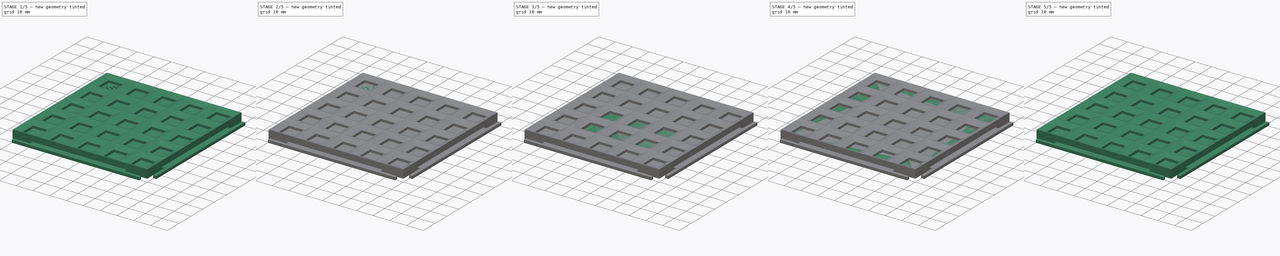
[diagram: build sequence overview — one tinted view per stage of 5, left to right]
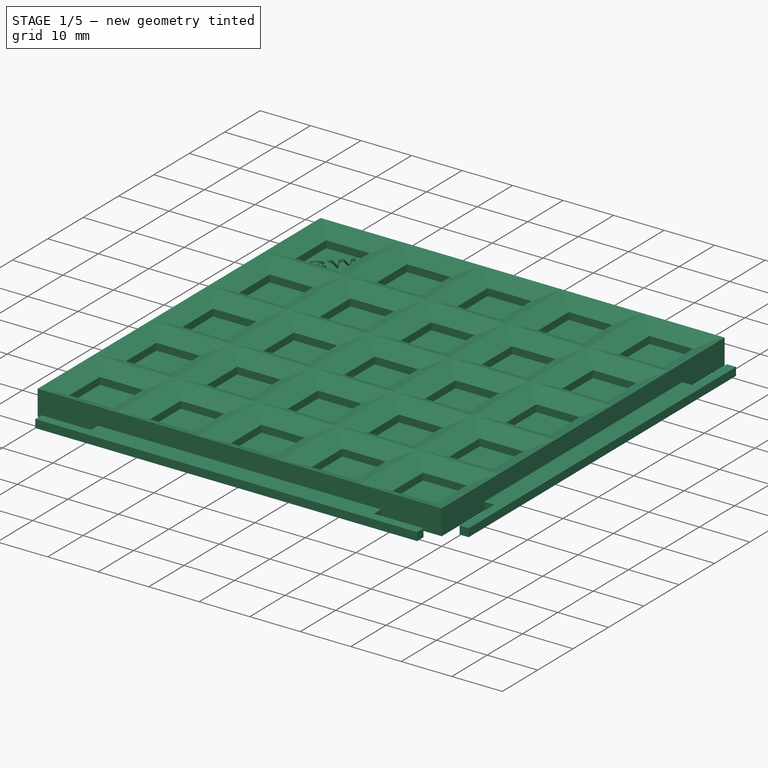
[diagram: stage 1 of 5 — iso view after this stage's code; geometry added in this stage tinted green]
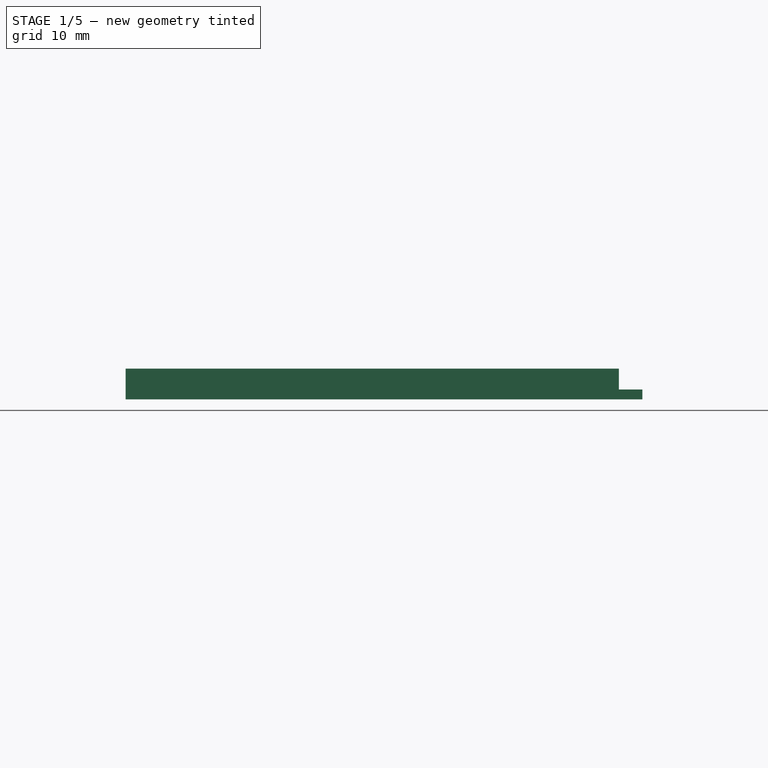
[diagram: stage 1 of 5 — front view after this stage's code; geometry added in this stage tinted green]
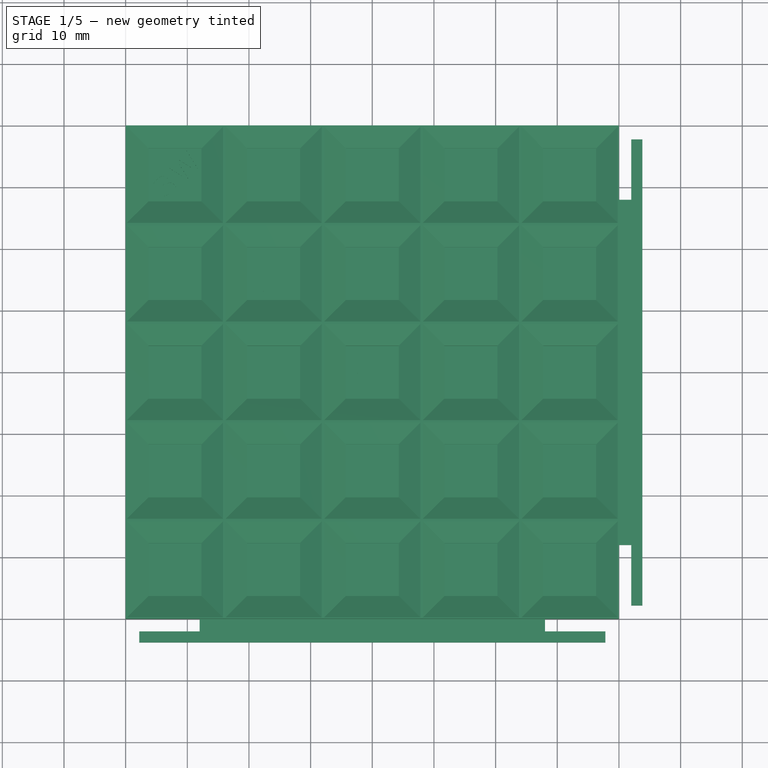
[diagram: stage 1 of 5 — top view after this stage's code; geometry added in this stage tinted green]
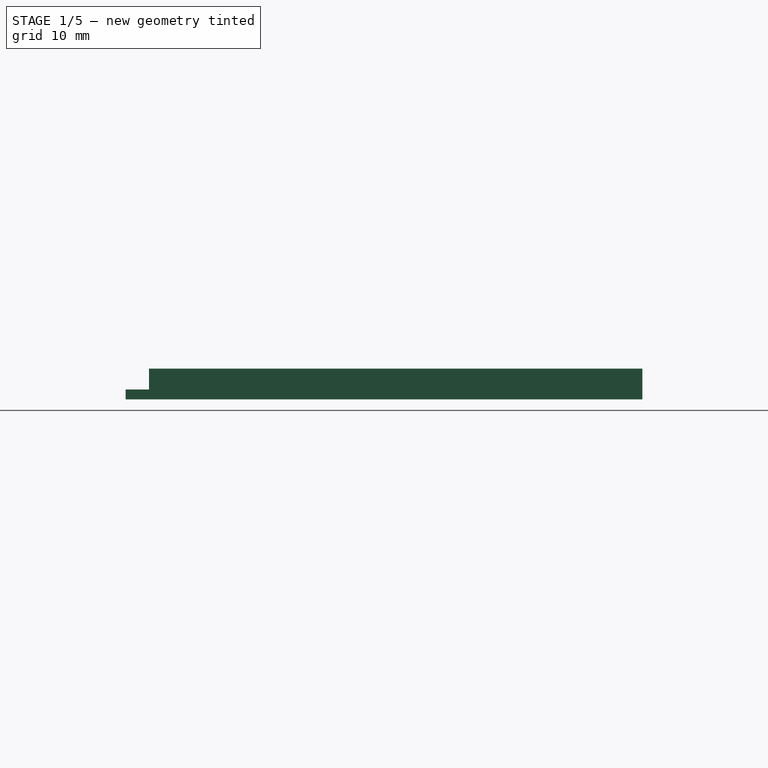
[diagram: stage 1 of 5 — right view after this stage's code; geometry added in this stage tinted green]
FCSTD DOCUMENT  (FreeCAD 0.18.4R)
Label: field
License: All rights reserved
LicenseURL: http://en.wikipedia.org/wiki/All_rights_reserved
objects: PartDesign::Pocket×92, Part::Part2DObjectPython×88, Sketcher::SketchObject×27, PartDesign::Body×23, PartDesign::Pad×22, PartDesign::PolarPattern×16, Part::Cut×9, PartDesign::Line×7, App::Part×3, Part::FeaturePython×1, PartDesign::FeatureBase×1
note: 400 computed .brp shape members not serialized (recipe doc carries the construction recipe); baked Part::Feature solids carry a one-line shape summary decoded from their .brp

FEATURE [Part::Part2DObjectPython] ShapeString069  # Draft 2D object (typed FeaturePython)
  AttachmentOffset = pos=(-1.5,59.8,0) rot=(0,0,1;0.785398rad)
  FontFile = <path>
  MapMode = 5
  Placement = pos=(-33.5,27.8,2.2) rot=(0,0,1;0.785398rad)
  Size = 3.6
  String = 3W
  Tracking = 0
  expr: AttachmentOffset.Base.x = -1.5
  expr: AttachmentOffset.Base.y = 16 * 4 - 4.2
FEATURE [Sketcher::SketchObject] CopySketch005003
  Placement = pos=(0,0,0) rot=(0,0,1;1.5708rad)
  sketch-geometry (12):
    g0: LineSegment [constr] StartX=-40 StartY=28 StartZ=0 EndX=-40 EndY=40 EndZ=0
    g1: LineSegment [constr] StartX=-40 StartY=-28 StartZ=0 EndX=-40 EndY=-40 EndZ=0
    g2: LineSegment StartX=-40 StartY=28 StartZ=0 EndX=-42 EndY=28 EndZ=0
    g3: LineSegment StartX=-42 StartY=28 StartZ=0 EndX=-42 EndY=37.8 EndZ=0
    g4: LineSegment StartX=-42 StartY=37.8 StartZ=0 EndX=-43.8 EndY=37.8 EndZ=0
    g5: LineSegment StartX=-43.8 StartY=37.8 StartZ=0 EndX=-43.8 EndY=-37.8 EndZ=0
    g6: LineSegment StartX=-43.8 StartY=-37.8 StartZ=0 EndX=-42 EndY=-37.8 EndZ=0
    g7: LineSegment StartX=-42 StartY=-37.8 StartZ=0 EndX=-42 EndY=-28 EndZ=0
    g8: LineSegment StartX=-42 StartY=-28 StartZ=0 EndX=-40 EndY=-28 EndZ=0
    g9: LineSegment StartX=-40 StartY=28 StartZ=0 EndX=-40 EndY=-28 EndZ=0
    g10: LineSegment [constr] StartX=-42 StartY=37.8 StartZ=0 EndX=-44 EndY=37.8 EndZ=0
    g11: LineSegment [constr] StartX=-43.8 StartY=-37.8 StartZ=0 EndX=-44 EndY=-37.8 EndZ=0
  constraints (32):
    c: Vertical(g1)
    c: Vertical(g0)
    c: Horizontal(g2)
    c: Coincident(g3,g2)
    c: Vertical(g3)
    c: Horizontal(g4)
    c: Vertical(g5)
    c: Coincident(g6,g5)
    c: Horizontal(g6)
    c: Vertical(g7)
    c: Horizontal(g8)
    c: Coincident(g4,g3)
    c: Coincident(g4,g5)
    c: Coincident(g6,g7)
    c: Coincident(g7,g8)
    c: Equal(g7,g3)
    c: Coincident(g0,g2)
    c: Coincident(g1,g8)
    c: Equal(g1,g0)
    c: DistanceY(g0,g0) = 12
    c: Coincident(g9,g2)
    c: Coincident(g9,g8)
    c: DistanceY(g3,g3) = 9.8
    c: Equal(g8,g2)
    c: DistanceX(g2,g2) = 2
    c: Coincident(g10,g3)
    c: Horizontal(g10)
    c: Coincident(g11,g5)
    c: Horizontal(g11)
    c: DistanceX(g11,g11) = 0.2
    c: Vertical(g11,g10)
    c: Equal(g10,g2)
FEATURE [PartDesign::Pocket] Pocket084
  Length = 0.6
  Length2 = 100
  Placement = pos=(-32,-32,0) rot=(0,0,1;0rad)
  Profile = -> ShapeString069
  Type = 0
FEATURE [Part::Part2DObjectPython] ShapeString072  # Draft 2D object (typed FeaturePython)
  AttachmentOffset = pos=(14.5,44,0) rot=(0,0,1;0.785398rad)
  FontFile = <path>
  MapMode = 5
  Placement = pos=(-17.5,12,2.2) rot=(0,0,1;0.785398rad)
  Size = 3.6
  String = 2W
  Support = -> [Pocket084]
  Tracking = 0
  expr: AttachmentOffset.Base.x = 16 - 1.5
  expr: AttachmentOffset.Base.y = 16 * 3 - 4
FEATURE [PartDesign::Pocket] Pocket086
  BaseFeature = -> Pocket084
  Length = 0.6
  Length2 = 100
  Placement = pos=(-32,-32,0) rot=(0,0,1;0rad)
  Profile = -> ShapeString072
  Type = 0
FEATURE [Part::Part2DObjectPython] ShapeString070  # Draft 2D object (typed FeaturePython)
  AttachmentOffset = pos=(30.5,28,0) rot=(0,0,1;0.785398rad)
  FontFile = <path>
  MapMode = 5
  Placement = pos=(-1.5,-4,2.2) rot=(0,0,1;0.785398rad)
  Size = 3.6
  String = 2W
  Support = -> [Pocket086]
  Tracking = 0
  expr: AttachmentOffset.Base.y = 16 * 2 - 4
  expr: AttachmentOffset.Base.x = 16 * 2 - 1.5
FEATURE [PartDesign::Pocket] Pocket080
  BaseFeature = -> Pocket086
  Length = 0.6
  Length2 = 100
  Placement = pos=(-32,-32,0) rot=(0,0,1;0rad)
  Profile = -> ShapeString070
  Type = 0
FEATURE [Part::Part2DObjectPython] ShapeString075  # Draft 2D object (typed FeaturePython)
  AttachmentOffset = pos=(46.5,12,0) rot=(0,0,1;0.785398rad)
  FontFile = <path>
  MapMode = 5
  Placement = pos=(14.5,-20,2.2) rot=(0,0,1;0.785398rad)
  Size = 3.6
  String = 2W
  Support = -> [Pocket080]
  Tracking = 0
  expr: AttachmentOffset.Base.x = 16 * 3 - 1.5
  expr: AttachmentOffset.Base.y = 16 - 4
FEATURE [PartDesign::Pocket] Pocket085
  BaseFeature = -> Pocket080
  Length = 0.6
  Length2 = 100
  Placement = pos=(-32,-32,0) rot=(0,0,1;0rad)
  Profile = -> ShapeString075
  Type = 0
FEATURE [Part::Part2DObjectPython] ShapeString074  # Draft 2D object (typed FeaturePython)
  AttachmentOffset = pos=(62.5,-4,0) rot=(0,0,1;0.785398rad)
  FontFile = <path>
  MapMode = 5
  Placement = pos=(30.5,-36,2.2) rot=(0,0,1;0.785398rad)
  Size = 3.6
  String = 2W
  Support = -> [Pocket085]
  Tracking = 0
  expr: AttachmentOffset.Base.y = -4
  expr: AttachmentOffset.Base.x = 16 * 4 - 1.5
FEATURE [PartDesign::Pocket] Pocket081
  BaseFeature = -> Pocket085
  Length = 0.6
  Length2 = 100
  Placement = pos=(-32,-32,0) rot=(0,0,1;0rad)
  Profile = -> ShapeString074
  Type = 0
FEATURE [Part::Part2DObjectPython] ShapeString071  # Draft 2D object (typed FeaturePython)
  AttachmentOffset = pos=(1.5,13,0) rot=(0,0,1;1.5708rad)
  FontFile = <path>
  MapMode = 5
  Placement = pos=(-30.5,-19,2.2) rot=(0,0,1;1.5708rad)
  Size = 3.8
  String = 2L
  Support = -> [Pocket081]
  Tracking = 0
  expr: AttachmentOffset.Base.y = 16 - 3
  expr: AttachmentOffset.Base.x = 1.5
FEATURE [PartDesign::Pocket] Pocket082
  BaseFeature = -> Pocket081
  Length = 0.6
  Length2 = 100
  Placement = pos=(-32,-32,0) rot=(0,0,1;0rad)
  Profile = -> ShapeString071
  Type = 0
FEATURE [Part::Part2DObjectPython] ShapeString073  # Draft 2D object (typed FeaturePython)
  AttachmentOffset = pos=(45,62.5,0) rot=(0,0,1;0rad)
  FontFile = <path>
  MapMode = 5
  Placement = pos=(13,30.5,2.2) rot=(0,0,1;0rad)
  Size = 3.8
  String = 2L
  Support = -> [Pocket082]
  Tracking = 0
  expr: AttachmentOffset.Base.x = 16 * 3 - 3
  expr: AttachmentOffset.Base.y = 16 * 4 - 1.5
FEATURE [PartDesign::Pocket] Pocket083
  BaseFeature = -> Pocket082
  Length = 0.6
  Length2 = 100
  Placement = pos=(-32,-32,0) rot=(0,0,1;0rad)
  Profile = -> ShapeString073
  Type = 0
FEATURE [PartDesign::Body] Body024  label="Corner-field001"
  Group = -> [ShapeString069,Pocket084,ShapeString072,ShapeString070,ShapeString075,ShapeString074,ShapeString071,ShapeString073,Pocket086,Pocket080,Pocket085,Pocket081,Pocket082,Pocket083,CopySketch005003,Pad033,PolarPattern014]
  Origin = -> Origin029
  Tip = -> PolarPattern014
FEATURE [Sketcher::SketchObject] Sketch035
  AttachmentOffset = pos=(0,0,2.2) rot=(0,0,1;0rad)
  MapMode = 5
  Placement = pos=(0,0,2.2) rot=(0,0,1;0rad)
  Support = -> [XY_Plane030]
  expr: Constraints[17] = 16 * 1.5
  expr: Constraints[9] = 16 * 4
  sketch-geometry (6):
    g0: LineSegment StartX=-24 StartY=24 StartZ=0 EndX=40 EndY=24 EndZ=0
    g1: LineSegment StartX=40 StartY=24 StartZ=0 EndX=40 EndY=-40 EndZ=0
    g2: LineSegment StartX=40 StartY=-40 StartZ=0 EndX=-24 EndY=-40 EndZ=0
    g3: LineSegment StartX=-24 StartY=-40 StartZ=0 EndX=-24 EndY=24 EndZ=0
    g4: LineSegment [constr] StartX=0 StartY=0 StartZ=0 EndX=0 EndY=24 EndZ=0
    g5: LineSegment [constr] StartX=0 StartY=0 StartZ=0 EndX=-24 EndY=0 EndZ=0
  constraints (18):
    c: Coincident(g0,g1)
    c: Coincident(g1,g2)
    c: Coincident(g2,g3)
    c: Coincident(g3,g0)
    c: Horizontal(g0)
    c: Horizontal(g2)
    c: Vertical(g1)
    c: Vertical(g3)
    c: Equal(g2,g1)
    c: DistanceY(g1,g1) = 64
    c: Coincident(g4,g-1)
    c: PointOnObject(g4,g0)
    c: Vertical(g4)
    c: Coincident(g5,g-1)
    c: PointOnObject(g5,g3)
    c: Horizontal(g5)
    c: Equal(g5,g4)
    c: DistanceY(g4,g4) = 24
FEATURE [PartDesign::Pad] Pad034
  Length = 0.6
  Length2 = 100
  Profile = -> Sketch035
  Reversed = true
  Type = 0
FEATURE [Part::Part2DObjectPython] ShapeString080  # Draft 2D object (typed FeaturePython)
  AttachmentOffset = pos=(-1.5,59.8,0) rot=(0,0,1;0.785398rad)
  FontFile = <path>
  MapMode = 5
  Placement = pos=(-33.5,27.8,2.2) rot=(0,0,1;0.785398rad)
  Size = 3.6
  String = 3W
  Tracking = 0
  expr: AttachmentOffset.Base.x = -1.5
  expr: AttachmentOffset.Base.y = 16 * 4 - 4.2
FEATURE [Sketcher::SketchObject] CopySketch005004
  Placement = pos=(0,0,0) rot=(0,0,1;1.5708rad)
  sketch-geometry (12):
    g0: LineSegment [constr] StartX=-40 StartY=28 StartZ=0 EndX=-40 EndY=40 EndZ=0
    g1: LineSegment [constr] StartX=-40 StartY=-28 StartZ=0 EndX=-40 EndY=-40 EndZ=0
    g2: LineSegment StartX=-40 StartY=28 StartZ=0 EndX=-42 EndY=28 EndZ=0
    g3: LineSegment StartX=-42 StartY=28 StartZ=0 EndX=-42 EndY=37.8 EndZ=0
    g4: LineSegment StartX=-42 StartY=37.8 StartZ=0 EndX=-43.8 EndY=37.8 EndZ=0
    g5: LineSegment StartX=-43.8 StartY=37.8 StartZ=0 EndX=-43.8 EndY=-37.8 EndZ=0
    g6: LineSegment StartX=-43.8 StartY=-37.8 StartZ=0 EndX=-42 EndY=-37.8 EndZ=0
    g7: LineSegment StartX=-42 StartY=-37.8 StartZ=0 EndX=-42 EndY=-28 EndZ=0
    g8: LineSegment StartX=-42 StartY=-28 StartZ=0 EndX=-40 EndY=-28 EndZ=0
    g9: LineSegment StartX=-40 StartY=28 StartZ=0 EndX=-40 EndY=-28 EndZ=0
    g10: LineSegment [constr] StartX=-42 StartY=37.8 StartZ=0 EndX=-44 EndY=37.8 EndZ=0
    g11: LineSegment [constr] StartX=-43.8 StartY=-37.8 StartZ=0 EndX=-44 EndY=-37.8 EndZ=0
  constraints (32):
    c: Vertical(g1)
    c: Vertical(g0)
    c: Horizontal(g2)
    c: Coincident(g3,g2)
    c: Vertical(g3)
    c: Horizontal(g4)
    c: Vertical(g5)
    c: Coincident(g6,g5)
    c: Horizontal(g6)
    c: Vertical(g7)
    c: Horizontal(g8)
    c: Coincident(g4,g3)
    c: Coincident(g4,g5)
    c: Coincident(g6,g7)
    c: Coincident(g7,g8)
    c: Equal(g7,g3)
    c: Coincident(g0,g2)
    c: Coincident(g1,g8)
    c: Equal(g1,g0)
    c: DistanceY(g0,g0) = 12
    c: Coincident(g9,g2)
    c: Coincident(g9,g8)
    c: DistanceY(g3,g3) = 9.8
    c: Equal(g8,g2)
    c: DistanceX(g2,g2) = 2
    c: Coincident(g10,g3)
    c: Horizontal(g10)
    c: Coincident(g11,g5)
    c: Horizontal(g11)
    c: DistanceX(g11,g11) = 0.2
    c: Vertical(g11,g10)
    c: Equal(g10,g2)
FEATURE [PartDesign::Pocket] Pocket093
  Length = 0.6
  Length2 = 100
  Placement = pos=(-32,-32,0) rot=(0,0,1;0rad)
  Profile = -> ShapeString080
  Type = 0
FEATURE [Part::Part2DObjectPython] ShapeString076  # Draft 2D object (typed FeaturePython)
  AttachmentOffset = pos=(14.5,44,0) rot=(0,0,1;0.785398rad)
  FontFile = <path>
  MapMode = 5
  Placement = pos=(-17.5,12,2.2) rot=(0,0,1;0.785398rad)
  Size = 3.6
  String = 2W
  Support = -> [Pocket093]
  Tracking = 0
  expr: AttachmentOffset.Base.x = 16 - 1.5
  expr: AttachmentOffset.Base.y = 16 * 3 - 4
FEATURE [PartDesign::Pocket] Pocket091
  BaseFeature = -> Pocket093
  Length = 0.6
  Length2 = 100
  Placement = pos=(-32,-32,0) rot=(0,0,1;0rad)
  Profile = -> ShapeString076
  Type = 0
FEATURE [Part::Part2DObjectPython] ShapeString077  # Draft 2D object (typed FeaturePython)
  AttachmentOffset = pos=(30.5,28,0) rot=(0,0,1;0.785398rad)
  FontFile = <path>
  MapMode = 5
  Placement = pos=(-1.5,-4,2.2) rot=(0,0,1;0.785398rad)
  Size = 3.6
  String = 2W
  Support = -> [Pocket091]
  Tracking = 0
  expr: AttachmentOffset.Base.y = 16 * 2 - 4
  expr: AttachmentOffset.Base.x = 16 * 2 - 1.5
FEATURE [PartDesign::Pocket] Pocket089
  BaseFeature = -> Pocket091
  Length = 0.6
  Length2 = 100
  Placement = pos=(-32,-32,0) rot=(0,0,1;0rad)
  Profile = -> ShapeString077
  Type = 0
FEATURE [Part::Part2DObjectPython] ShapeString081  # Draft 2D object (typed FeaturePython)
  AttachmentOffset = pos=(46.5,12,0) rot=(0,0,1;0.785398rad)
  FontFile = <path>
  MapMode = 5
  Placement = pos=(14.5,-20,2.2) rot=(0,0,1;0.785398rad)
  Size = 3.6
  String = 2W
  Support = -> [Pocket089]
  Tracking = 0
  expr: AttachmentOffset.Base.x = 16 * 3 - 1.5
  expr: AttachmentOffset.Base.y = 16 - 4
FEATURE [PartDesign::Pocket] Pocket092
  BaseFeature = -> Pocket089
  Length = 0.6
  Length2 = 100
  Placement = pos=(-32,-32,0) rot=(0,0,1;0rad)
  Profile = -> ShapeString081
  Type = 0
FEATURE [Part::Part2DObjectPython] ShapeString082  # Draft 2D object (typed FeaturePython)
  AttachmentOffset = pos=(62.5,-4,0) rot=(0,0,1;0.785398rad)
  FontFile = <path>
  MapMode = 5
  Placement = pos=(30.5,-36,2.2) rot=(0,0,1;0.785398rad)
  Size = 3.6
  String = 2W
  Support = -> [Pocket092]
  Tracking = 0
  expr: AttachmentOffset.Base.y = -4
  expr: AttachmentOffset.Base.x = 16 * 4 - 1.5
FEATURE [PartDesign::Pocket] Pocket088
  BaseFeature = -> Pocket092
  Length = 0.6
  Length2 = 100
  Placement = pos=(-32,-32,0) rot=(0,0,1;0rad)
  Profile = -> ShapeString082
  Type = 0
FEATURE [Part::Part2DObjectPython] ShapeString079  # Draft 2D object (typed FeaturePython)
  AttachmentOffset = pos=(1.5,13,0) rot=(0,0,1;1.5708rad)
  FontFile = <path>
  MapMode = 5
  Placement = pos=(-30.5,-19,2.2) rot=(0,0,1;1.5708rad)
  Size = 3.8
  String = 2L
  Support = -> [Pocket088]
  Tracking = 0
  expr: AttachmentOffset.Base.y = 16 - 3
  expr: AttachmentOffset.Base.x = 1.5
FEATURE [PartDesign::Pocket] Pocket090
  BaseFeature = -> Pocket088
  Length = 0.6
  Length2 = 100
  Placement = pos=(-32,-32,0) rot=(0,0,1;0rad)
  Profile = -> ShapeString079
  Type = 0
FEATURE [Part::Part2DObjectPython] ShapeString078  # Draft 2D object (typed FeaturePython)
  AttachmentOffset = pos=(45,62.5,0) rot=(0,0,1;0rad)
  FontFile = <path>
  MapMode = 5
  Placement = pos=(13,30.5,2.2) rot=(0,0,1;0rad)
  Size = 3.8
  String = 2L
  Support = -> [Pocket090]
  Tracking = 0
  expr: AttachmentOffset.Base.x = 16 * 3 - 3
  expr: AttachmentOffset.Base.y = 16 * 4 - 1.5
FEATURE [PartDesign::Pocket] Pocket087
  BaseFeature = -> Pocket090
  Length = 0.6
  Length2 = 100
  Placement = pos=(-32,-32,0) rot=(0,0,1;0rad)
  Profile = -> ShapeString078
  Type = 0
FEATURE [PartDesign::Pad] Pad035
  BaseFeature = -> Pocket087
  Length = 1.6
  Length2 = 100
  Placement = pos=(-32,-32,0) rot=(0,0,1;0rad)
  Profile = -> CopySketch005004
  Type = 0
FEATURE [PartDesign::PolarPattern] PolarPattern015
  Angle = 90
  Axis = -> Z_Axis031
  BaseFeature = -> Pad035
  Occurrences = 2
  Originals = -> [Pad035]
  Placement = pos=(-32,-32,0) rot=(0,0,1;0rad)
FEATURE [PartDesign::Body] Body026  label="Corner-field002"
  Group = -> [ShapeString080,Pocket093,ShapeString076,ShapeString077,ShapeString081,ShapeString082,ShapeString079,ShapeString078,Pocket091,Pocket089,Pocket092,Pocket088,Pocket090,Pocket087,CopySketch005004,Pad035,PolarPattern015]
  Origin = -> Origin031
  Tip = -> PolarPattern015
FEATURE [Sketcher::SketchObject] Sketch036
  AttachmentOffset = pos=(0,0,2.2) rot=(0,0,1;0rad)
  MapMode = 5
  Placement = pos=(0,0,2.2) rot=(0,0,1;0rad)
  Support = -> [XY_Plane032]
  expr: Constraints[40] = 16 / 2
  expr: Constraints[33] = 16 * 1.5
  sketch-geometry (14):
    g0: LineSegment StartX=-40 StartY=-8 StartZ=0 EndX=-40 EndY=-24 EndZ=0
    g1: LineSegment StartX=-40 StartY=-24 StartZ=0 EndX=-24 EndY=-24 EndZ=0
    g2: LineSegment StartX=-24 StartY=-24 StartZ=0 EndX=-24 EndY=-9.24 EndZ=0
    g3: LineSegment StartX=-24 StartY=-9.24 StartZ=0 EndX=9.24 EndY=24 EndZ=0
    g4: LineSegment StartX=9.24 StartY=24 StartZ=0 EndX=24 EndY=24 EndZ=0
    g5: LineSegment StartX=24 StartY=24 StartZ=0 EndX=24 EndY=40 EndZ=0
    g6: LineSegment StartX=24 StartY=40 StartZ=0 EndX=8 EndY=40 EndZ=0
    g7: LineSegment StartX=8 StartY=40 StartZ=0 EndX=8 EndY=24 EndZ=0
    g8: LineSegment StartX=8 StartY=24 StartZ=0 EndX=-24 EndY=-8 EndZ=0
    g9: LineSegment StartX=-24 StartY=-8 StartZ=0 EndX=-40 EndY=-8 EndZ=0
    g10: LineSegment [constr] StartX=9.24 StartY=24 StartZ=0 EndX=9.24 EndY=0 EndZ=0
    g11: LineSegment [constr] StartX=-24 StartY=-9.24 StartZ=0 EndX=0 EndY=-9.24 EndZ=0
    g12: LineSegment [constr] StartX=-40 StartY=-8 StartZ=0 EndX=-40 EndY=0 EndZ=0
    g13: LineSegment [constr] StartX=8 StartY=40 StartZ=0 EndX=1.8e-15 EndY=40 EndZ=0
  constraints (42):
    c: Vertical(g0)
    c: Coincident(g1,g0)
    c: Horizontal(g1)
    c: Coincident(g2,g1)
    c: Vertical(g2)
    c: Coincident(g3,g2)
    c: Horizontal(g4)
    c: Vertical(g5)
    c: Horizontal(g6)
    c: Vertical(g7)
    c: Coincident(g9,g8)
    c: Coincident(g9,g0)
    c: Horizontal(g9)
    c: Coincident(g6,g7)
    c: Coincident(g8,g7)
    c: Coincident(g6,g5)
    c: Coincident(g5,g4)
    c: Equal(g1,g6)
    c: Equal(g6,g5)
    c: Equal(g5,g0)
    c: DistanceX(g1,g1) = 16
    c: Coincident(g3,g4)
    c: Parallel(g3,g8)
    c: Vertical(g8,g2)
    c: Coincident(g10,g3)
    c: PointOnObject(g10,g-1)
    c: Vertical(g10)
    c: Coincident(g11,g2)
    c: PointOnObject(g11,g-2)
    c: Horizontal(g11)
    c: Equal(g10,g11)
    c: Equal(g9,g7)
    c: Equal(g4,g2)
    c: DistanceX(g11,g11) = 24
    c: Coincident(g12,g0)
    c: PointOnObject(g12,g-1)
    c: Vertical(g12)
    c: Coincident(g13,g6)
    c: Horizontal(g13)
    c: Equal(g13,g12)
    c: DistanceY(g12,g12) = 8
    c: DistanceX(g4,g4) = 14.76
FEATURE [PartDesign::Pad] Pad036
  Length = 0.6
  Length2 = 100
  Profile = -> Sketch036
  Reversed = true
  Type = 0
FEATURE [PartDesign::Body] Body027  label="Corner-2L-f"
  Group = -> [Sketch036,Pad036]
  Origin = -> Origin032
  Tip = -> Pad036
FEATURE [Part::Cut] Cut008  label="Corner-2L-comp"
  Base = -> Body027
  Tool = -> Body026
FEATURE [Part::Part2DObjectPython] ShapeString087  # Draft 2D object (typed FeaturePython)
  AttachmentOffset = pos=(-1.5,59.8,0) rot=(0,0,1;0.785398rad)
  FontFile = <path>
  MapMode = 5
  Placement = pos=(-33.5,27.8,2.2) rot=(0,0,1;0.785398rad)
  Size = 3.6
  String = 3W
  Tracking = 0
  expr: AttachmentOffset.Base.x = -1.5
  expr: AttachmentOffset.Base.y = 16 * 4 - 4.2
FEATURE [Sketcher::SketchObject] CopySketch005005
  Placement = pos=(0,0,0.2) rot=(0,0,1;1.5708rad)
  sketch-geometry (12):
    g0: LineSegment [constr] StartX=-40 StartY=28 StartZ=0 EndX=-40 EndY=40 EndZ=0
    g1: LineSegment [constr] StartX=-40 StartY=-28 StartZ=0 EndX=-40 EndY=-40 EndZ=0
    g2: LineSegment StartX=-40 StartY=28 StartZ=0 EndX=-42 EndY=28 EndZ=0
    g3: LineSegment StartX=-42 StartY=28 StartZ=0 EndX=-42 EndY=37.8 EndZ=0
    g4: LineSegment StartX=-42 StartY=37.8 StartZ=0 EndX=-43.8 EndY=37.8 EndZ=0
    g5: LineSegment StartX=-43.8 StartY=37.8 StartZ=0 EndX=-43.8 EndY=-37.8 EndZ=0
    g6: LineSegment StartX=-43.8 StartY=-37.8 StartZ=0 EndX=-42 EndY=-37.8 EndZ=0
    g7: LineSegment StartX=-42 StartY=-37.8 StartZ=0 EndX=-42 EndY=-28 EndZ=0
    g8: LineSegment StartX=-42 StartY=-28 StartZ=0 EndX=-40 EndY=-28 EndZ=0
    g9: LineSegment StartX=-40 StartY=28 StartZ=0 EndX=-40 EndY=-28 EndZ=0
    g10: LineSegment [constr] StartX=-42 StartY=37.8 StartZ=0 EndX=-44 EndY=37.8 EndZ=0
    g11: LineSegment [constr] StartX=-43.8 StartY=-37.8 StartZ=0 EndX=-44 EndY=-37.8 EndZ=0
  constraints (32):
    c: Vertical(g1)
    c: Vertical(g0)
    c: Horizontal(g2)
    c: Coincident(g3,g2)
    c: Vertical(g3)
    c: Horizontal(g4)
    c: Vertical(g5)
    c: Coincident(g6,g5)
    c: Horizontal(g6)
    c: Vertical(g7)
    c: Horizontal(g8)
    c: Coincident(g4,g3)
    c: Coincident(g4,g5)
    c: Coincident(g6,g7)
    c: Coincident(g7,g8)
    c: Equal(g7,g3)
    c: Coincident(g0,g2)
    c: Coincident(g1,g8)
    c: Equal(g1,g0)
    c: DistanceY(g0,g0) = 12
    c: Coincident(g9,g2)
    c: Coincident(g9,g8)
    c: DistanceY(g3,g3) = 9.8
    c: Equal(g8,g2)
    c: DistanceX(g2,g2) = 2
    c: Coincident(g10,g3)
    c: Horizontal(g10)
    c: Coincident(g11,g5)
    c: Horizontal(g11)
    c: DistanceX(g11,g11) = 0.2
    c: Vertical(g11,g10)
    c: Equal(g10,g2)
FEATURE [PartDesign::Pocket] Pocket100
  Length = 0.6
  Length2 = 100
  Placement = pos=(-32,-32,0) rot=(0,0,1;0rad)
  Profile = -> ShapeString087
  Type = 0
FEATURE [Part::Part2DObjectPython] ShapeString083  # Draft 2D object (typed FeaturePython)
  AttachmentOffset = pos=(14.5,44,0) rot=(0,0,1;0.785398rad)
  FontFile = <path>
  MapMode = 5
  Placement = pos=(-17.5,12,2.2) rot=(0,0,1;0.785398rad)
  Size = 3.6
  String = 2W
  Support = -> [Pocket100]
  Tracking = 0
  expr: AttachmentOffset.Base.x = 16 - 1.5
  expr: AttachmentOffset.Base.y = 16 * 3 - 4
FEATURE [PartDesign::Pocket] Pocket098
  BaseFeature = -> Pocket100
  Length = 0.6
  Length2 = 100
  Placement = pos=(-32,-32,0) rot=(0,0,1;0rad)
  Profile = -> ShapeString083
  Type = 0
FEATURE [Part::Part2DObjectPython] ShapeString084  # Draft 2D object (typed FeaturePython)
  AttachmentOffset = pos=(30.5,28,0) rot=(0,0,1;0.785398rad)
  FontFile = <path>
  MapMode = 5
  Placement = pos=(-1.5,-4,2.2) rot=(0,0,1;0.785398rad)
  Size = 3.6
  String = 2W
  Support = -> [Pocket098]
  Tracking = 0
  expr: AttachmentOffset.Base.y = 16 * 2 - 4
  expr: AttachmentOffset.Base.x = 16 * 2 - 1.5
FEATURE [PartDesign::Pocket] Pocket096
  BaseFeature = -> Pocket098
  Length = 0.6
  Length2 = 100
  Placement = pos=(-32,-32,0) rot=(0,0,1;0rad)
  Profile = -> ShapeString084
  Type = 0
FEATURE [Part::Part2DObjectPython] ShapeString088  # Draft 2D object (typed FeaturePython)
  AttachmentOffset = pos=(46.5,12,0) rot=(0,0,1;0.785398rad)
  FontFile = <path>
  MapMode = 5
  Placement = pos=(14.5,-20,2.2) rot=(0,0,1;0.785398rad)
  Size = 3.6
  String = 2W
  Support = -> [Pocket096]
  Tracking = 0
  expr: AttachmentOffset.Base.x = 16 * 3 - 1.5
  expr: AttachmentOffset.Base.y = 16 - 4
FEATURE [PartDesign::Pocket] Pocket099
  BaseFeature = -> Pocket096
  Length = 0.6
  Length2 = 100
  Placement = pos=(-32,-32,0) rot=(0,0,1;0rad)
  Profile = -> ShapeString088
  Type = 0
FEATURE [Part::Part2DObjectPython] ShapeString089  # Draft 2D object (typed FeaturePython)
  AttachmentOffset = pos=(62.5,-4,0) rot=(0,0,1;0.785398rad)
  FontFile = <path>
  MapMode = 5
  Placement = pos=(30.5,-36,2.2) rot=(0,0,1;0.785398rad)
  Size = 3.6
  String = 2W
  Support = -> [Pocket099]
  Tracking = 0
  expr: AttachmentOffset.Base.y = -4
  expr: AttachmentOffset.Base.x = 16 * 4 - 1.5
FEATURE [PartDesign::Pocket] Pocket095
  BaseFeature = -> Pocket099
  Length = 0.6
  Length2 = 100
  Placement = pos=(-32,-32,0) rot=(0,0,1;0rad)
  Profile = -> ShapeString089
  Type = 0
FEATURE [Part::Part2DObjectPython] ShapeString086  # Draft 2D object (typed FeaturePython)
  AttachmentOffset = pos=(1.5,13,0) rot=(0,0,1;1.5708rad)
  FontFile = <path>
  MapMode = 5
  Placement = pos=(-30.5,-19,2.2) rot=(0,0,1;1.5708rad)
  Size = 3.8
  String = 2L
  Support = -> [Pocket095]
  Tracking = 0
  expr: AttachmentOffset.Base.y = 16 - 3
  expr: AttachmentOffset.Base.x = 1.5
FEATURE [PartDesign::Pocket] Pocket097
  BaseFeature = -> Pocket095
  Length = 0.6
  Length2 = 100
  Placement = pos=(-32,-32,0) rot=(0,0,1;0rad)
  Profile = -> ShapeString086
  Type = 0
FEATURE [Part::Part2DObjectPython] ShapeString085  # Draft 2D object (typed FeaturePython)
  AttachmentOffset = pos=(45,62.5,0) rot=(0,0,1;0rad)
  FontFile = <path>
  MapMode = 5
  Placement = pos=(13,30.5,2.2) rot=(0,0,1;0rad)
  Size = 3.8
  String = 2L
  Support = -> [Pocket097]
  Tracking = 0
  expr: AttachmentOffset.Base.x = 16 * 3 - 3
  expr: AttachmentOffset.Base.y = 16 * 4 - 1.5
FEATURE [PartDesign::Pocket] Pocket094
  BaseFeature = -> Pocket097
  Length = 0.6
  Length2 = 100
  Placement = pos=(-32,-32,0) rot=(0,0,1;0rad)
  Profile = -> ShapeString085
  Type = 0
FEATURE [PartDesign::Pad] Pad037
  BaseFeature = -> Pocket094
  Length = 1.6
  Length2 = 100
  Placement = pos=(-32,-32,0) rot=(0,0,1;0rad)
  Profile = -> CopySketch005005
  Type = 0
FEATURE [PartDesign::PolarPattern] PolarPattern016
  Angle = 90
  Axis = -> Z_Axis033
  BaseFeature = -> Pad037
  Occurrences = 2
  Originals = -> [Pad037]
  Placement = pos=(-32,-32,0) rot=(0,0,1;0rad)
FEATURE [PartDesign::Body] Body028  label="Corner-field003"
  Group = -> [ShapeString087,Pocket100,ShapeString083,ShapeString084,ShapeString088,ShapeString089,ShapeString086,ShapeString085,Pocket098,Pocket096,Pocket099,Pocket095,Pocket097,Pocket094,CopySketch005005,Pad037,PolarPattern016]
  Origin = -> Origin033
  Tip = -> PolarPattern016
FEATURE [App::Part] Part002  label="Corner"
  Group = -> [Body024,Body018,Cut006,Body022,Body025,Cut007,Body026,Body027,Cut008,Body028]
  Origin = -> Origin021
note: 84 file-system paths scrubbed to <path> (originals preserved in the JSON sidecar)
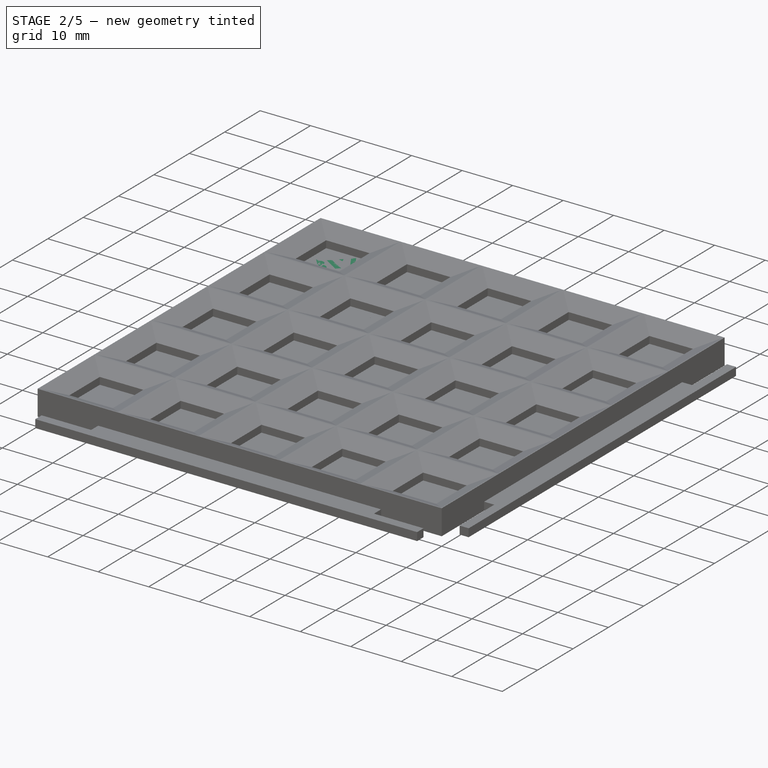
[diagram: stage 2 of 5 — iso view after this stage's code; geometry added in this stage tinted green]
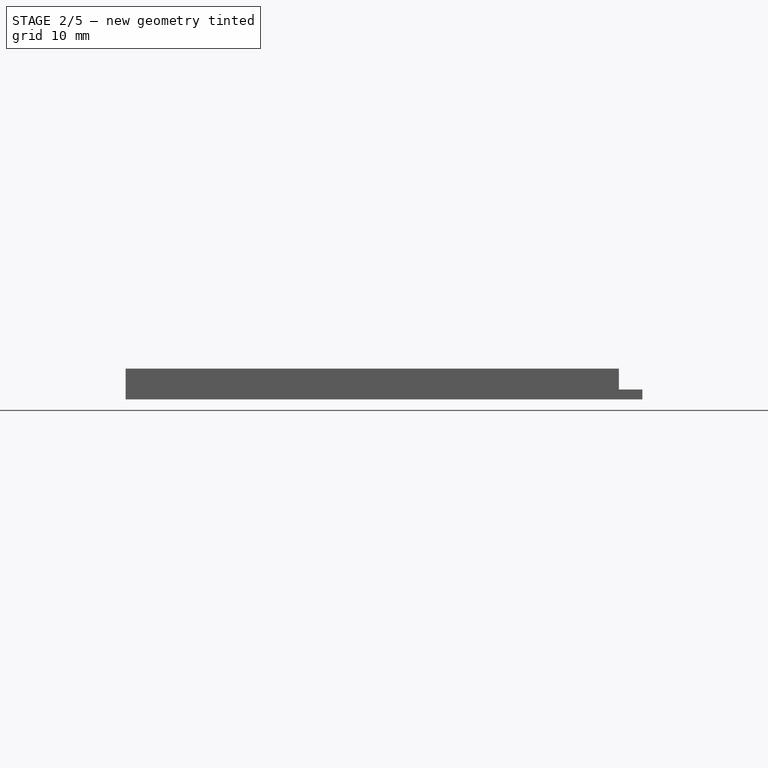
[diagram: stage 2 of 5 — front view after this stage's code; geometry added in this stage tinted green]
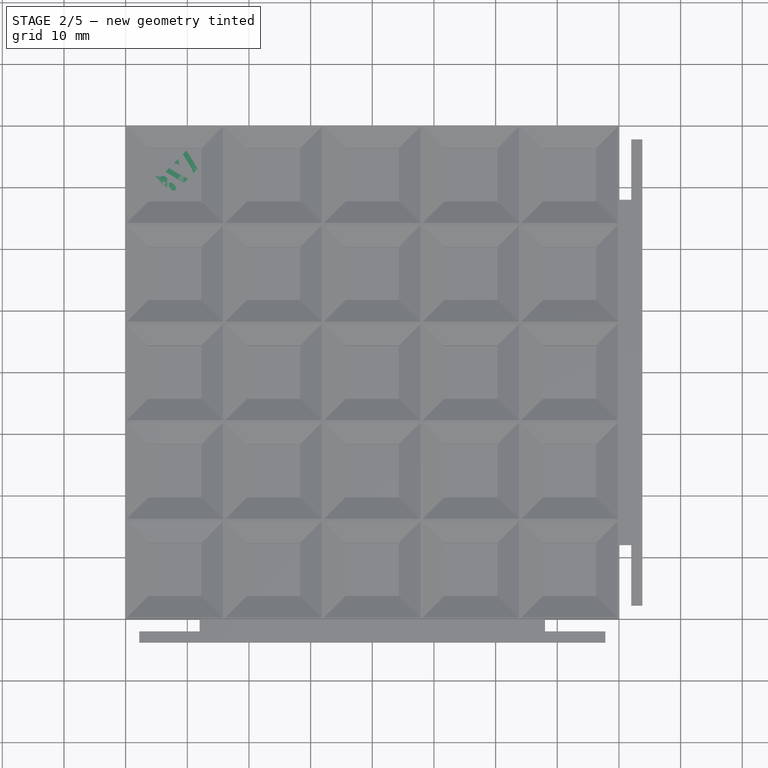
[diagram: stage 2 of 5 — top view after this stage's code; geometry added in this stage tinted green]
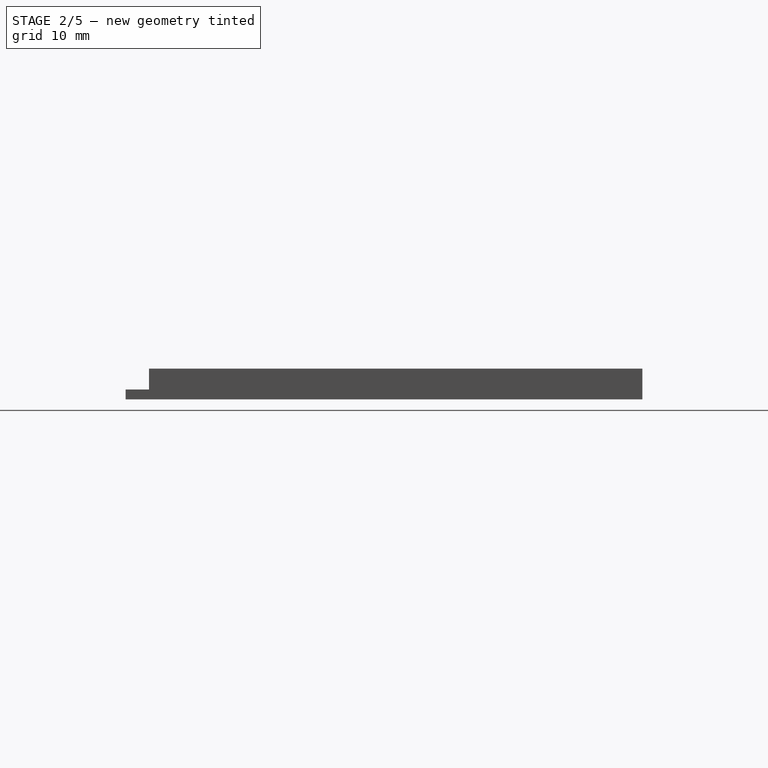
[diagram: stage 2 of 5 — right view after this stage's code; geometry added in this stage tinted green]
FEATURE [Sketcher::SketchObject] Sketch
  MapMode = 5
  Placement = pos=(-8.2,0,0) rot=(0.57735,-0.57735,-0.57735;2.0944rad)
  sketch-geometry (8):
    g0: LineSegment StartX=-8 StartY=8 StartZ=0 EndX=8 EndY=8 EndZ=0
    g1: LineSegment StartX=8 StartY=8 StartZ=0 EndX=8 EndY=-8 EndZ=0
    g2: LineSegment StartX=8 StartY=-8 StartZ=0 EndX=-8 EndY=-8 EndZ=0
    g3: LineSegment StartX=-8 StartY=-8 StartZ=0 EndX=-8 EndY=8 EndZ=0
    g4: LineSegment StartX=-4.3 StartY=4.3 StartZ=0 EndX=4.3 EndY=4.3 EndZ=0
    g5: LineSegment StartX=4.3 StartY=4.3 StartZ=0 EndX=4.3 EndY=-4.3 EndZ=0
    g6: LineSegment StartX=4.3 StartY=-4.3 StartZ=0 EndX=-4.3 EndY=-4.3 EndZ=0
    g7: LineSegment StartX=-4.3 StartY=-4.3 StartZ=0 EndX=-4.3 EndY=4.3 EndZ=0
  constraints (20):
    c: Coincident(g0,g1)
    c: Coincident(g1,g2)
    c: Coincident(g2,g3)
    c: Coincident(g3,g0)
    c: Horizontal(g2)
    c: Vertical(g1)
    c: Coincident(g4,g5)
    c: Coincident(g5,g6)
    c: Coincident(g6,g7)
    c: Coincident(g7,g4)
    c: DistanceY(g5,g5) = 8.6
    c: Distance(g2) = 16
    c: Symmetric(g0,g0,g-2)
    c: Symmetric(g0,g2,g-1)
    c: Symmetric(g4,g4,g-2)
    c: Equal(g4,g7)
    c: Equal(g0,g3)
    c: Symmetric(g4,g5,g-1)
    c: Vertical(g7)
    c: Horizontal(g6)
FEATURE [PartDesign::Pad] Pad
  Length = 1.4
  Length2 = 100
  Placement = pos=(-8.2,0,0) rot=(0.57735,-0.57735,-0.57735;2.0944rad)
  Profile = -> Sketch
  Type = 0
FEATURE [Sketcher::SketchObject] Sketch001
  ExternalGeometry = -> [Pad]
  MapMode = 5
  Placement = pos=(-9.6,0,0) rot=(0.57735,-0.57735,-0.57735;2.0944rad)
  Support = -> [Pad]
  sketch-geometry (8):
    g0: LineSegment StartX=-8 StartY=8 StartZ=0 EndX=8 EndY=8 EndZ=0
    g1: LineSegment StartX=8 StartY=8 StartZ=0 EndX=8 EndY=-8 EndZ=0
    g2: LineSegment StartX=8 StartY=-8 StartZ=0 EndX=-8 EndY=-8 EndZ=0
    g3: LineSegment StartX=-8 StartY=-8 StartZ=0 EndX=-8 EndY=8 EndZ=0
    g4: LineSegment StartX=-7.8 StartY=7.8 StartZ=0 EndX=7.8 EndY=7.8 EndZ=0
    g5: LineSegment StartX=7.8 StartY=7.8 StartZ=0 EndX=7.8 EndY=-7.8 EndZ=0
    g6: LineSegment StartX=7.8 StartY=-7.8 StartZ=0 EndX=-7.8 EndY=-7.8 EndZ=0
    g7: LineSegment StartX=-7.8 StartY=-7.8 StartZ=0 EndX=-7.8 EndY=7.8 EndZ=0
  constraints (20):
    c: Coincident(g0,g1)
    c: Coincident(g1,g2)
    c: Coincident(g2,g3)
    c: Coincident(g3,g0)
    c: Horizontal(g0)
    c: Horizontal(g2)
    c: Vertical(g1)
    c: Vertical(g3)
    c: Coincident(g0,g-4)
    c: Coincident(g1,g-6)
    c: Coincident(g4,g5)
    c: Coincident(g5,g6)
    c: Coincident(g6,g7)
    c: Coincident(g7,g4)
    c: Horizontal(g6)
    c: Vertical(g5)
    c: Distance(g6,g2) = 0.2
    c: Symmetric(g4,g6,g-1)
    c: Symmetric(g4,g4,g-2)
    c: Equal(g4,g7)
FEATURE [PartDesign::Pad] Pad001
  BaseFeature = -> Pad
  Length = 1.6
  Length2 = 100
  Placement = pos=(-8.2,0,0) rot=(0.57735,-0.57735,-0.57735;2.0944rad)
  Profile = -> Sketch001
  Type = 0
FEATURE [PartDesign::Line] DatumLine
  AttacherType = Attacher::AttachEngineLine
  MapMode = 29
  Placement = pos=(-9.6,-4.3,0) rot=(0,1,0;3.14159rad)
  Support = -> [Pad001]
FEATURE [PartDesign::Line] DatumLine001
  AttacherType = Attacher::AttachEngineLine
  MapMode = 29
  Placement = pos=(-9.6,0,4.3) rot=(1,0,0;1.5708rad)
  Support = -> [Pad001]
FEATURE [PartDesign::Line] DatumLine002
  AttacherType = Attacher::AttachEngineLine
  MapMode = 29
  Placement = pos=(-9.6,4.3,0) rot=(0,0,1;0rad)
  Support = -> [Pad001]
FEATURE [PartDesign::Line] DatumLine003
  AttacherType = Attacher::AttachEngineLine
  MapMode = 29
  Placement = pos=(-9.6,0,-4.3) rot=(0,0.707107,0.707107;3.14159rad)
  Support = -> [Pad001]
FEATURE [Sketcher::SketchObject] Sketch002
  ExternalGeometry = -> [Pad001,DatumLine002,DatumLine]
  MapMode = 5
  Placement = pos=(-8.2,-9e-16,7.8) rot=(-0.707107,0.707107,0;3.14159rad)
  Support = -> [Pad001]
  sketch-geometry (6):
    g0: LineSegment StartX=7.8 StartY=3 StartZ=0 EndX=4.3 EndY=1.4 EndZ=0
    g1: LineSegment StartX=4.3 StartY=1.4 StartZ=0 EndX=7.8 EndY=1.4 EndZ=0
    g2: LineSegment StartX=7.8 StartY=1.4 StartZ=0 EndX=7.8 EndY=3 EndZ=0
    g3: LineSegment StartX=-4.3 StartY=1.4 StartZ=0 EndX=-7.8 EndY=1.4 EndZ=0
    g4: LineSegment StartX=-7.8 StartY=1.4 StartZ=0 EndX=-7.8 EndY=3 EndZ=0
    g5: LineSegment StartX=-7.8 StartY=3 StartZ=0 EndX=-4.3 EndY=1.4 EndZ=0
  constraints (12):
    c: Coincident(g0,g-8)
    c: Coincident(g0,g-7)
    c: Coincident(g1,g0)
    c: Coincident(g1,g-8)
    c: Coincident(g2,g1)
    c: Coincident(g2,g0)
    c: Coincident(g3,g-4)
    c: Coincident(g3,g-6)
    c: Coincident(g4,g3)
    c: Coincident(g4,g-6)
    c: Coincident(g5,g4)
    c: Coincident(g5,g3)
FEATURE [PartDesign::Pad] Pad002
  BaseFeature = -> Pad001
  Length = 10
  Length2 = 100
  Placement = pos=(-8.2,0,0) rot=(0.57735,-0.57735,-0.57735;2.0944rad)
  Profile = -> Sketch002
  Type = 3
  UpToFace = -> Pad001 [Face17]
FEATURE [Sketcher::SketchObject] Sketch003
  ExternalGeometry = -> [Pad001,DatumLine001,DatumLine003]
  MapMode = 5
  Placement = pos=(-8.2,-7.8,0) rot=(-0.57735,0.57735,0.57735;2.0944rad)
  Support = -> [Pad001]
  sketch-geometry (6):
    g0: LineSegment StartX=7.8 StartY=3 StartZ=0 EndX=4.3 EndY=1.4 EndZ=0
    g1: LineSegment StartX=4.3 StartY=1.4 StartZ=0 EndX=7.8 EndY=1.4 EndZ=0
    g2: LineSegment StartX=7.8 StartY=1.4 StartZ=0 EndX=7.8 EndY=3 EndZ=0
    g3: LineSegment StartX=-4.3 StartY=1.4 StartZ=0 EndX=-7.8 EndY=1.4 EndZ=0
    g4: LineSegment StartX=-7.8 StartY=1.4 StartZ=0 EndX=-7.8 EndY=3 EndZ=0
    g5: LineSegment StartX=-7.8 StartY=3 StartZ=0 EndX=-4.3 EndY=1.4 EndZ=0
  constraints (12):
    c: Coincident(g0,g-8)
    c: Coincident(g0,g-7)
    c: Coincident(g1,g0)
    c: Coincident(g1,g-8)
    c: Coincident(g2,g1)
    c: Coincident(g2,g0)
    c: Coincident(g3,g-4)
    c: Coincident(g3,g-5)
    c: Coincident(g4,g3)
    c: Coincident(g4,g-6)
    c: Coincident(g5,g4)
    c: Coincident(g5,g3)
FEATURE [PartDesign::Pad] Pad003
  BaseFeature = -> Pad002
  Length = 10
  Length2 = 100
  Placement = pos=(-8.2,0,0) rot=(0.57735,-0.57735,-0.57735;2.0944rad)
  Profile = -> Sketch003
  Type = 3
  UpToFace = -> Pad002 [Face7]
FEATURE [Sketcher::SketchObject] Sketch004
  ExternalGeometry = -> [Pad003]
  MapMode = 5
  Placement = pos=(-8.2,0,0) rot=(0.57735,-0.57735,0.57735;4.18879rad)
  Support = -> [Pad003]
  sketch-geometry (4):
    g0: LineSegment StartX=-8 StartY=8 StartZ=0 EndX=8 EndY=8 EndZ=0
    g1: LineSegment StartX=8 StartY=8 StartZ=0 EndX=8 EndY=-8 EndZ=0
    g2: LineSegment StartX=8 StartY=-8 StartZ=0 EndX=-8 EndY=-8 EndZ=0
    g3: LineSegment StartX=-8 StartY=-8 StartZ=0 EndX=-8 EndY=8 EndZ=0
  constraints (10):
    c: Coincident(g0,g1)
    c: Coincident(g1,g2)
    c: Coincident(g2,g3)
    c: Coincident(g3,g0)
    c: Horizontal(g0)
    c: Horizontal(g2)
    c: Vertical(g1)
    c: Vertical(g3)
    c: Coincident(g0,g-4)
    c: Coincident(g1,g-6)
FEATURE [PartDesign::Pad] Pad004
  BaseFeature = -> Pad003
  Length = 2
  Length2 = 100
  Placement = pos=(-8.2,0,0) rot=(0.57735,-0.57735,-0.57735;2.0944rad)
  Profile = -> Sketch004
  Type = 0
FEATURE [PartDesign::Body] Body  label="LetterPlace"
  Group = -> [Sketch,Pad,Sketch001,Pad001,DatumLine,DatumLine001,DatumLine002,DatumLine003,Sketch002,Pad002,Sketch003,Pad003,Sketch004,Pad004]
  Origin = -> Origin
  Placement = pos=(0,0,-6) rot=(0,1,0;1.5708rad)
  Tip = -> Pad004
FEATURE [Part::FeaturePython] Array  # Draft array (typed FeaturePython)
  Angle = 0
  ArrayType = 0
  Axis = (1,1,0)
  Base = -> Body
  Center = (0,0,0)
  Fuse = true
  IntervalAxis = (0,0,0)
  IntervalX = (16,0,0)
  IntervalY = (0,16,0)
  IntervalZ = (0,0,1)
  NumberPolar = 1
  NumberX = 5
  NumberY = 5
  NumberZ = 1
  Placement = pos=(-32,-32,0) rot=(0,0,1;0rad)
FEATURE [Part::Part2DObjectPython] ShapeString  # Draft 2D object (typed FeaturePython)
  AttachmentOffset = pos=(-1.5,59.8,0) rot=(0,0,1;0.785398rad)
  FontFile = <path>
  MapMode = 5
  Placement = pos=(-33.5,27.8,2.2) rot=(0,0,1;0.785398rad)
  Size = 3.6
  String = 3W
  Support = -> [Array]
  Tracking = 0
  expr: AttachmentOffset.Base.x = -1.5
  expr: AttachmentOffset.Base.y = 16 * 4 - 4.2
FEATURE [PartDesign::Pocket] Pocket056
  Length = 0.6
  Length2 = 100
  Placement = pos=(-32,-32,0) rot=(0,0,1;0rad)
  Profile = -> ShapeString
  Type = 0
FEATURE [Part::Part2DObjectPython] ShapeString049  # Draft 2D object (typed FeaturePython)
  AttachmentOffset = pos=(14.5,44,0) rot=(0,0,1;0.785398rad)
  FontFile = <path>
  MapMode = 5
  Placement = pos=(-17.5,12,2.2) rot=(0,0,1;0.785398rad)
  Size = 3.6
  String = 2W
  Support = -> [Pocket056]
  Tracking = 0
  expr: AttachmentOffset.Base.x = 16 - 1.5
  expr: AttachmentOffset.Base.y = 16 * 3 - 4
FEATURE [PartDesign::Pocket] Pocket057
  BaseFeature = -> Pocket056
  Length = 0.6
  Length2 = 100
  Placement = pos=(-32,-32,0) rot=(0,0,1;0rad)
  Profile = -> ShapeString049
  Type = 0
FEATURE [Part::Part2DObjectPython] ShapeString050  # Draft 2D object (typed FeaturePython)
  AttachmentOffset = pos=(30.5,28,0) rot=(0,0,1;0.785398rad)
  FontFile = <path>
  MapMode = 5
  Placement = pos=(-1.5,-4,2.2) rot=(0,0,1;0.785398rad)
  Size = 3.6
  String = 2W
  Support = -> [Pocket057]
  Tracking = 0
  expr: AttachmentOffset.Base.y = 16 * 2 - 4
  expr: AttachmentOffset.Base.x = 16 * 2 - 1.5
FEATURE [PartDesign::Pocket] Pocket058
  BaseFeature = -> Pocket057
  Length = 0.6
  Length2 = 100
  Placement = pos=(-32,-32,0) rot=(0,0,1;0rad)
  Profile = -> ShapeString050
  Type = 0
FEATURE [Part::Part2DObjectPython] ShapeString051  # Draft 2D object (typed FeaturePython)
  AttachmentOffset = pos=(46.5,12,0) rot=(0,0,1;0.785398rad)
  FontFile = <path>
  MapMode = 5
  Placement = pos=(14.5,-20,2.2) rot=(0,0,1;0.785398rad)
  Size = 3.6
  String = 2W
  Support = -> [Pocket058]
  Tracking = 0
  expr: AttachmentOffset.Base.x = 16 * 3 - 1.5
  expr: AttachmentOffset.Base.y = 16 - 4
FEATURE [PartDesign::Pocket] Pocket059
  BaseFeature = -> Pocket058
  Length = 0.6
  Length2 = 100
  Placement = pos=(-32,-32,0) rot=(0,0,1;0rad)
  Profile = -> ShapeString051
  Type = 0
FEATURE [Part::Part2DObjectPython] ShapeString052  # Draft 2D object (typed FeaturePython)
  AttachmentOffset = pos=(62.5,-4,0) rot=(0,0,1;0.785398rad)
  FontFile = <path>
  MapMode = 5
  Placement = pos=(30.5,-36,2.2) rot=(0,0,1;0.785398rad)
  Size = 3.6
  String = 2W
  Support = -> [Pocket059]
  Tracking = 0
  expr: AttachmentOffset.Base.y = -4
  expr: AttachmentOffset.Base.x = 16 * 4 - 1.5
FEATURE [PartDesign::Pocket] Pocket060
  BaseFeature = -> Pocket059
  Length = 0.6
  Length2 = 100
  Placement = pos=(-32,-32,0) rot=(0,0,1;0rad)
  Profile = -> ShapeString052
  Type = 0
FEATURE [Part::Part2DObjectPython] ShapeString053  # Draft 2D object (typed FeaturePython)
  AttachmentOffset = pos=(1.5,13,0) rot=(0,0,1;1.5708rad)
  FontFile = <path>
  MapMode = 5
  Placement = pos=(-30.5,-19,2.2) rot=(0,0,1;1.5708rad)
  Size = 3.8
  String = 2L
  Support = -> [Pocket060]
  Tracking = 0
  expr: AttachmentOffset.Base.y = 16 - 3
  expr: AttachmentOffset.Base.x = 1.5
FEATURE [PartDesign::Pocket] Pocket061
  BaseFeature = -> Pocket060
  Length = 0.6
  Length2 = 100
  Placement = pos=(-32,-32,0) rot=(0,0,1;0rad)
  Profile = -> ShapeString053
  Type = 0
FEATURE [Part::Part2DObjectPython] ShapeString054  # Draft 2D object (typed FeaturePython)
  AttachmentOffset = pos=(45,62.5,0) rot=(0,0,1;0rad)
  FontFile = <path>
  MapMode = 5
  Placement = pos=(13,30.5,2.2) rot=(0,0,1;0rad)
  Size = 3.8
  String = 2L
  Support = -> [Pocket061]
  Tracking = 0
  expr: AttachmentOffset.Base.x = 16 * 3 - 3
  expr: AttachmentOffset.Base.y = 16 * 4 - 1.5
FEATURE [PartDesign::Pocket] Pocket062
  BaseFeature = -> Pocket061
  Length = 0.6
  Length2 = 100
  Placement = pos=(-32,-32,0) rot=(0,0,1;0rad)
  Profile = -> ShapeString054
  Type = 0
FEATURE [Sketcher::SketchObject] CopySketch005001  label="CopySketch008"
  Placement = pos=(0,0,0) rot=(0,0,1;1.5708rad)
  sketch-geometry (12):
    g0: LineSegment [constr] StartX=-40 StartY=28 StartZ=0 EndX=-40 EndY=40 EndZ=0
    g1: LineSegment [constr] StartX=-40 StartY=-28 StartZ=0 EndX=-40 EndY=-40 EndZ=0
    g2: LineSegment StartX=-40 StartY=28 StartZ=0 EndX=-42 EndY=28 EndZ=0
    g3: LineSegment StartX=-42 StartY=28 StartZ=0 EndX=-42 EndY=37.8 EndZ=0
    g4: LineSegment StartX=-42 StartY=37.8 StartZ=0 EndX=-43.8 EndY=37.8 EndZ=0
    g5: LineSegment StartX=-43.8 StartY=37.8 StartZ=0 EndX=-43.8 EndY=-37.8 EndZ=0
    g6: LineSegment StartX=-43.8 StartY=-37.8 StartZ=0 EndX=-42 EndY=-37.8 EndZ=0
    g7: LineSegment StartX=-42 StartY=-37.8 StartZ=0 EndX=-42 EndY=-28 EndZ=0
    g8: LineSegment StartX=-42 StartY=-28 StartZ=0 EndX=-40 EndY=-28 EndZ=0
    g9: LineSegment StartX=-40 StartY=28 StartZ=0 EndX=-40 EndY=-28 EndZ=0
    g10: LineSegment [constr] StartX=-42 StartY=37.8 StartZ=0 EndX=-44 EndY=37.8 EndZ=0
    g11: LineSegment [constr] StartX=-43.8 StartY=-37.8 StartZ=0 EndX=-44 EndY=-37.8 EndZ=0
  constraints (32):
    c: Vertical(g1)
    c: Vertical(g0)
    c: Horizontal(g2)
    c: Coincident(g3,g2)
    c: Vertical(g3)
    c: Horizontal(g4)
    c: Vertical(g5)
    c: Coincident(g6,g5)
    c: Horizontal(g6)
    c: Vertical(g7)
    c: Horizontal(g8)
    c: Coincident(g4,g3)
    c: Coincident(g4,g5)
    c: Coincident(g6,g7)
    c: Coincident(g7,g8)
    c: Equal(g7,g3)
    c: Coincident(g0,g2)
    c: Coincident(g1,g8)
    c: Equal(g1,g0)
    c: DistanceY(g0,g0) = 12
    c: Coincident(g9,g2)
    c: Coincident(g9,g8)
    c: DistanceY(g3,g3) = 9.8
    c: Equal(g8,g2)
    c: DistanceX(g2,g2) = 2
    c: Coincident(g10,g3)
    c: Horizontal(g10)
    c: Coincident(g11,g5)
    c: Horizontal(g11)
    c: DistanceX(g11,g11) = 0.2
    c: Vertical(g11,g10)
    c: Equal(g10,g2)
FEATURE [PartDesign::Pad] Pad020
  BaseFeature = -> Pocket062
  Length = 1.6
  Length2 = 100
  Placement = pos=(-32,-32,0) rot=(0,0,1;0rad)
  Profile = -> CopySketch005001
  Type = 0
FEATURE [PartDesign::PolarPattern] PolarPattern010
  Angle = 90
  Axis = -> Z_Axis022
  BaseFeature = -> Pad020
  Occurrences = 2
  Originals = -> [Pad020]
  Placement = pos=(-32,-32,0) rot=(0,0,1;0rad)
FEATURE [PartDesign::Body] Body019  label="Middle-field003"
  Group = -> [PolarPattern011,PolarPattern012,ShapeString055,Pocket064,ShapeString056,Pocket065,ShapeString057,Pocket066,ShapeString058,Pocket067,ShapeString059,Pocket068,ShapeString060,Pocket069,CopySketch005002,Pad026]
  Origin = -> Origin024
  Tip = -> Pad026
FEATURE [App::Part] Part001  label="Middle"
  Group = -> [Body004,Body013,Cut003,Body014,Body015,Cut004,Body016,Body017,Cut005,Body019]
  Origin = -> Origin014
FEATURE [Sketcher::SketchObject] Sketch033  label="MamaLock003"
  MapMode = 5
  Placement = pos=(-32,-32,0.2) rot=(1,0,0;3.14159rad)
  sketch-geometry (13):
    g0: LineSegment StartX=-8 StartY=-60.2 StartZ=0 EndX=-6.2 EndY=-60.2 EndZ=0
    g1: LineSegment StartX=-6.2 StartY=-60.2 StartZ=0 EndX=-6.2 EndY=-70 EndZ=0
    g2: LineSegment StartX=-6.2 StartY=-70 StartZ=0 EndX=-4.2 EndY=-70 EndZ=0
    g3: LineSegment StartX=-4.2 StartY=-70 StartZ=0 EndX=-4.2 EndY=6 EndZ=0
    g4: LineSegment StartX=-4.2 StartY=6 StartZ=0 EndX=-6.2 EndY=6 EndZ=0
    g5: LineSegment StartX=-6.2 StartY=6 StartZ=0 EndX=-6.2 EndY=-3.8 EndZ=0
    g6: LineSegment StartX=-6.2 StartY=-3.8 StartZ=0 EndX=-8 EndY=-3.8 EndZ=0
    g7: LineSegment StartX=-8 StartY=-3.8 StartZ=0 EndX=-8 EndY=-60.2 EndZ=0
    g8: LineSegment [constr] StartX=-8 StartY=6 StartZ=0 EndX=-8 EndY=5.8 EndZ=0
    g9: LineSegment [constr] StartX=-6.2 StartY=-3.8 StartZ=0 EndX=-6.2 EndY=-4 EndZ=0
    g10: LineSegment [constr] StartX=-6.2 StartY=-60.2 StartZ=0 EndX=-6.2 EndY=-60 EndZ=0
    g11: LineSegment [constr] StartX=-11.8 StartY=-69.8 StartZ=0 EndX=-9.8 EndY=-69.8 EndZ=0
    g12: LineSegment [constr] StartX=-10 StartY=-69.8 StartZ=0 EndX=-9.8 EndY=-69.8 EndZ=0
  constraints (30):
    c: Coincident(g0,g7)
    c: Coincident(g6,g7)
    c: Coincident(g0,g1)
    c: Coincident(g1,g2)
    c: Coincident(g4,g5)
    c: Coincident(g5,g6)
    c: Coincident(g2,g3)
    c: Coincident(g3,g4)
    c: Vertical(g5)
    c: Horizontal(g6)
    c: Horizontal(g4)
    c: Vertical(g3)
    c: Vertical(g7)
    c: Horizontal(g0)
    c: Vertical(g1)
    c: Horizontal(g2)
    c: Equal(g5,g1)
    c: Horizontal(g8,g4)
    c: Coincident(g9,g5)
    c: Vertical(g9)
    c: Equal(g9,g8)
    c: Vertical(g0,g9)
    c: Coincident(g10,g0)
    c: Vertical(g10)
    c: Equal(g10,g9)
    c: Horizontal(g11)
    c: Equal(g11,g2)
    c: Horizontal(g12)
    c: Vertical(g12,g11)
    c: Equal(g12,g10)
FEATURE [PartDesign::Pocket] Pocket070
  Length = 1.8
  Length2 = 100
  Placement = pos=(-32,-32,0) rot=(0,0,1;0rad)
  Profile = -> Sketch033
  Type = 0
FEATURE [PartDesign::PolarPattern] PolarPattern013
  Angle = 360
  Axis = -> Z_Axis026
  BaseFeature = -> Pocket070
  Occurrences = 4
  Originals = -> [Pocket070]
  Placement = pos=(-32,-32,0) rot=(0,0,1;0rad)
FEATURE [Part::Part2DObjectPython] ShapeString061  # Draft 2D object (typed FeaturePython)
  FontFile = <path>
  Placement = pos=(17,-13,2.2) rot=(0,0,1;3.92699rad)
  Size = 3.8
  String = 2L
  Tracking = 0
  expr: Placement.Base.y = -16 + 3
  expr: Placement.Base.x = 16 + 1
FEATURE [Part::Part2DObjectPython] ShapeString062  # Draft 2D object (typed FeaturePython)
  FontFile = <path>
  Placement = pos=(-13,-17,2.2) rot=(0,0,1;2.35619rad)
  Size = 3.8
  String = 2L
  Tracking = 0
  expr: Placement.Base.y = -16 - 1
  expr: Placement.Base.x = -16 + 3
FEATURE [PartDesign::Pocket] Pocket073
  BaseFeature = -> PolarPattern013
  Length = 0.6
  Length2 = 100
  Placement = pos=(-32,-32,0) rot=(0,0,1;0rad)
  Profile = -> ShapeString061
  Type = 0
FEATURE [Part::Part2DObjectPython] ShapeString063  # Draft 2D object (typed FeaturePython)
  FontFile = <path>
  Placement = pos=(-17.5,13,2.2) rot=(0,0,1;0.785398rad)
  Size = 3.8
  String = 2L
  Tracking = 0
  expr: Placement.Base.y = 16 - 3
  expr: Placement.Base.x = -16 - 1.5
FEATURE [Part::Part2DObjectPython] ShapeString064  # Draft 2D object (typed FeaturePython)
  FontFile = <path>
  Placement = pos=(12.5,17.2,2.2) rot=(0,0,-1;0.785398rad)
  Size = 3.8
  String = 2L
  Tracking = 0
  expr: Placement.Base.y = 16 + 1.2
  expr: Placement.Base.x = 16 - 3.5
FEATURE [PartDesign::Pocket] Pocket072
  BaseFeature = -> Pocket073
  Length = 0.6
  Length2 = 100
  Placement = pos=(-32,-32,0) rot=(0,0,1;0rad)
  Profile = -> ShapeString064
  Type = 0
FEATURE [PartDesign::Pocket] Pocket075
  BaseFeature = -> Pocket072
  Length = 0.6
  Length2 = 100
  Placement = pos=(-32,-32,0) rot=(0,0,1;0rad)
  Profile = -> ShapeString062
  Type = 0
FEATURE [PartDesign::Pocket] Pocket076
  BaseFeature = -> Pocket075
  Length = 0.6
  Length2 = 100
  Placement = pos=(-32,-32,0) rot=(0,0,1;0rad)
  Profile = -> ShapeString063
  Type = 0
FEATURE [Part::Part2DObjectPython] Circle003  # Draft 2D object (typed FeaturePython)
  FirstAngle = 0
  LastAngle = 0
  MakeFace = false
  Placement = pos=(0,0,2.2) rot=(0,0,-1;1.5708rad)
  Radius = 3
FEATURE [PartDesign::Pocket] Pocket071
  BaseFeature = -> Pocket076
  Length = 0.6
  Length2 = 100
  Placement = pos=(-32,-32,0) rot=(0,0,1;0rad)
  Profile = -> Circle003
  Type = 0
FEATURE [Part::Part2DObjectPython] ShapeString065  # Draft 2D object (typed FeaturePython)
  AttachmentOffset = pos=(3,-1,0) rot=(0,0,1;2.35619rad)
  FontFile = <path>
  MapMode = 5
  Placement = pos=(-29,-33,2.2) rot=(0,0,1;2.35619rad)
  Size = 3.8
  String = 3L
  Support = -> [Pocket071]
  Tracking = 0
FEATURE [Part::Part2DObjectPython] ShapeString066  # Draft 2D object (typed FeaturePython)
  AttachmentOffset = pos=(-1.5,61.5,0) rot=(0,0,1;0.785398rad)
  FontFile = <path>
  MapMode = 5
  Placement = pos=(-33.5,29.5,2.2) rot=(0,0,1;0.785398rad)
  Size = 3.8
  String = 3L
  Support = -> [Pocket071]
  Tracking = 0
  expr: AttachmentOffset.Base.y = 16 * 4 - 2.5
  expr: AttachmentOffset.Base.x = -1.5
FEATURE [Part::Part2DObjectPython] ShapeString067  # Draft 2D object (typed FeaturePython)
  AttachmentOffset = pos=(65,3,0) rot=(0,0,1;-2.35619rad)
  FontFile = <path>
  MapMode = 5
  Placement = pos=(33,-29,2.2) rot=(0,0,1;3.92699rad)
  Size = 3.8
  String = 3L
  Support = -> [Pocket071]
  Tracking = 0
  expr: AttachmentOffset.Base.y = 3
  expr: AttachmentOffset.Base.x = 16 * 4 + 1
  expr: AttachmentOffset.Rotation.Axis.x = 0
FEATURE [Part::Part2DObjectPython] ShapeString068  # Draft 2D object (typed FeaturePython)
  AttachmentOffset = pos=(61,65.5,0) rot=(0,0,1;-0.785398rad)
  FontFile = <path>
  MapMode = 5
  Placement = pos=(29,33.5,2.2) rot=(0,0,1;5.49779rad)
  Size = 3.8
  String = 3L
  Support = -> [Pocket071]
  Tracking = 0
  expr: AttachmentOffset.Base.y = 16 * 4 + 1.5
  expr: AttachmentOffset.Base.x = 16 * 4 - 3
FEATURE [PartDesign::Pocket] Pocket079
  BaseFeature = -> Pocket071
  Length = 0.6
  Length2 = 100
  Placement = pos=(-32,-32,0) rot=(0,0,1;0rad)
  Profile = -> ShapeString066
  Type = 0
FEATURE [PartDesign::Body] Body021  label="Center-field003"
  Group = -> [Pocket070,PolarPattern013,ShapeString061,ShapeString063,ShapeString062,ShapeString064,Circle003,Pocket073,Pocket072,Pocket075,Pocket076,Pocket071,ShapeString066,ShapeString068,ShapeString067,ShapeString065,Pocket079,Pocket078,Pocket077,Pocket074]
  Origin = -> Origin026
  Tip = -> Pocket074
FEATURE [App::Part] Part  label="Center"
  Group = -> [Body005,Body002,Cut,Body006,Body009,Cut001,Body011,Body012,Cut002,Body021]
  Origin = -> Origin013
FEATURE [Sketcher::SketchObject] Sketch034
  AttachmentOffset = pos=(0,0,2.2) rot=(0,0,1;0rad)
  MapMode = 5
  Placement = pos=(0,0,2.2) rot=(0,0,1;0rad)
  Support = -> [XY_Plane027]
  expr: Constraints[17] = 16 * 2 - 4
  sketch-geometry (6):
    g0: LineSegment StartX=-37 StartY=37 StartZ=0 EndX=-28 EndY=37 EndZ=0
    g1: LineSegment StartX=-28 StartY=37 StartZ=0 EndX=-28 EndY=28 EndZ=0
    g2: LineSegment StartX=-28 StartY=28 StartZ=0 EndX=-37 EndY=28 EndZ=0
    g3: LineSegment StartX=-37 StartY=28 StartZ=0 EndX=-37 EndY=37 EndZ=0
    g4: LineSegment [constr] StartX=-28 StartY=28 StartZ=0 EndX=0 EndY=28 EndZ=0
    g5: LineSegment [constr] StartX=-28 StartY=28 StartZ=0 EndX=-28 EndY=0 EndZ=0
  constraints (18):
    c: Coincident(g0,g1)
    c: Coincident(g1,g2)
    c: Coincident(g2,g3)
    c: Coincident(g3,g0)
    c: Horizontal(g0)
    c: Horizontal(g2)
    c: Vertical(g1)
    c: Vertical(g3)
    c: Equal(g0,g1)
    c: DistanceY(g1,g1) = 9
    c: Coincident(g4,g1)
    c: PointOnObject(g4,g-2)
    c: Horizontal(g4)
    c: Coincident(g5,g1)
    c: PointOnObject(g5,g-1)
    c: Vertical(g5)
    c: Equal(g5,g4)
    c: DistanceX(g4,g4) = 28
FEATURE [PartDesign::Pad] Pad027
  Length = 0.6
  Length2 = 100
  Profile = -> Sketch034
  Reversed = true
  Type = 0
FEATURE [PartDesign::Body] Body022  label="Corner-3W-f"
  Group = -> [Sketch034,Pad027]
  Origin = -> Origin027
  Tip = -> Pad027
FEATURE [Part::Cut] Cut006  label="Corner-3W-comp"
  Base = -> Body022
  Tool = -> Body018
FEATURE [PartDesign::Pad] Pad033
  BaseFeature = -> Pocket083
  Length = 1.6
  Length2 = 100
  Placement = pos=(-32,-32,0) rot=(0,0,1;0rad)
  Profile = -> CopySketch005003
  Type = 0
FEATURE [PartDesign::PolarPattern] PolarPattern014
  Angle = 90
  Axis = -> Z_Axis029
  BaseFeature = -> Pad033
  Occurrences = 2
  Originals = -> [Pad033]
  Placement = pos=(-32,-32,0) rot=(0,0,1;0rad)
FEATURE [PartDesign::Body] Body025  label="Corner-2W-f"
  Group = -> [Sketch035,Pad034]
  Origin = -> Origin030
  Tip = -> Pad034
FEATURE [Part::Cut] Cut007  label="Corner-2W-comp"
  Base = -> Body025
  Tool = -> Body024
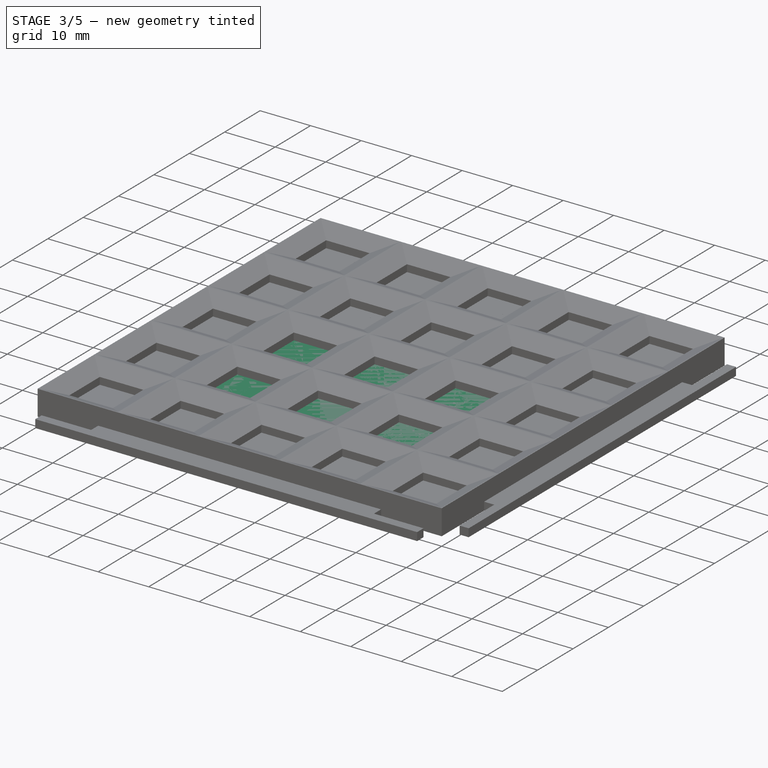
[diagram: stage 3 of 5 — iso view after this stage's code; geometry added in this stage tinted green]
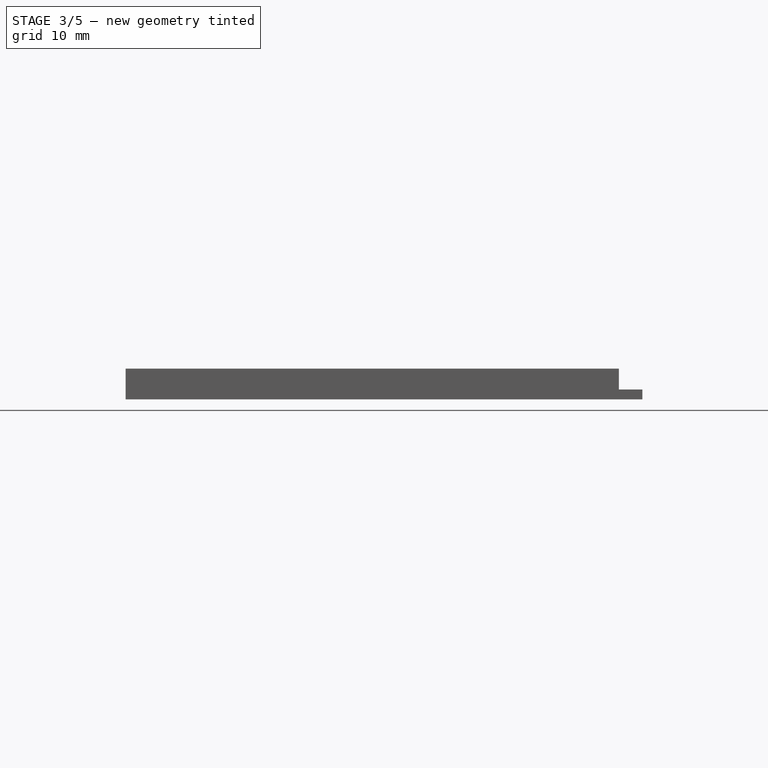
[diagram: stage 3 of 5 — front view after this stage's code; geometry added in this stage tinted green]
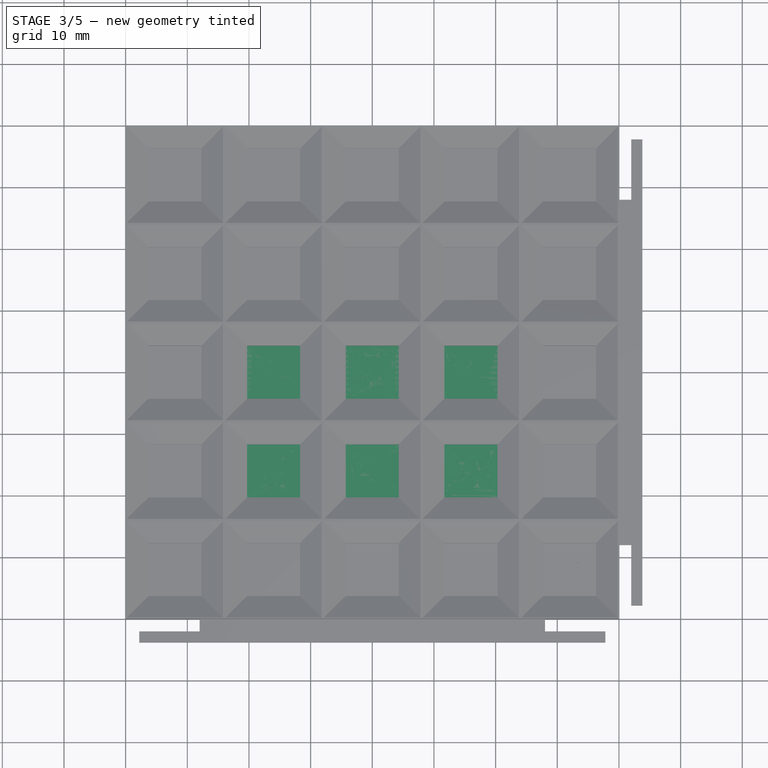
[diagram: stage 3 of 5 — top view after this stage's code; geometry added in this stage tinted green]
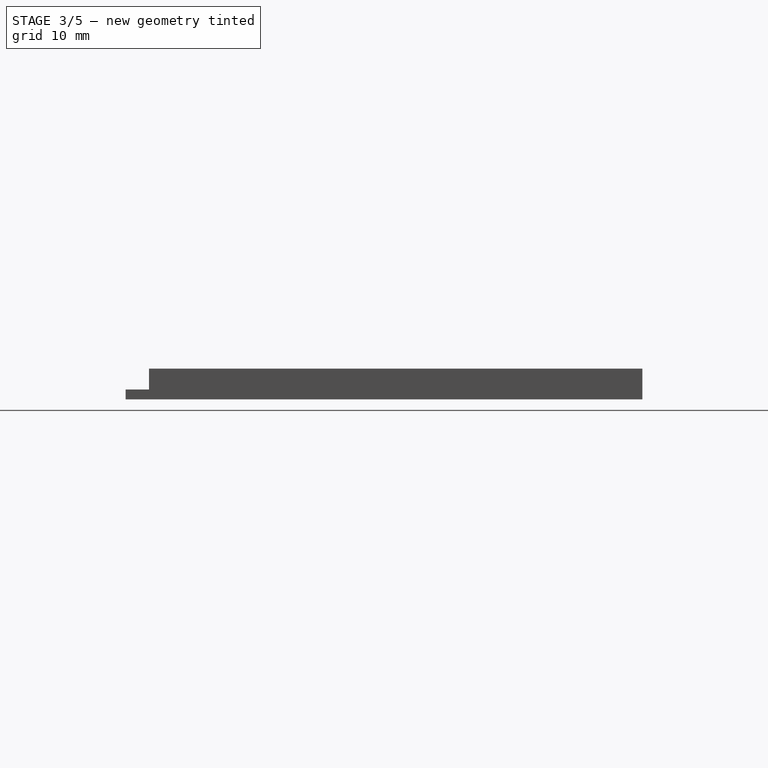
[diagram: stage 3 of 5 — right view after this stage's code; geometry added in this stage tinted green]
FEATURE [PartDesign::PolarPattern] PolarPattern006
  Angle = 360
  Axis = -> Z_Axis018
  Occurrences = 2
  Placement = pos=(-32,-32,0) rot=(0,0,1;0rad)
FEATURE [PartDesign::PolarPattern] PolarPattern007
  Angle = 90
  Axis = -> Z_Axis018
  BaseFeature = -> PolarPattern006
  Occurrences = 2
  Placement = pos=(-32,-32,0) rot=(0,0,1;0rad)
FEATURE [Part::Part2DObjectPython] ShapeString037  # Draft 2D object (typed FeaturePython)
  AttachmentOffset = pos=(27.5,62,0) rot=(0,0,1;0rad)
  FontFile = <path>
  MapMode = 5
  Placement = pos=(-4.5,30,2.2) rot=(0,0,1;0rad)
  Size = 3.8
  String = 3W
  Support = -> [PolarPattern007]
  Tracking = 0
  expr: AttachmentOffset.Base.y = 16 * 4 - 2
  expr: AttachmentOffset.Base.x = 16 * 2 - 4.5
FEATURE [PartDesign::Pocket] Pocket044
  BaseFeature = -> PolarPattern006
  Length = 0.6
  Length2 = 100
  Placement = pos=(-32,-32,0) rot=(0,0,1;0rad)
  Profile = -> ShapeString037
  Type = 0
FEATURE [Part::Part2DObjectPython] ShapeString038  # Draft 2D object (typed FeaturePython)
  AttachmentOffset = pos=(-3.5,46.5,0) rot=(0,0,1;0rad)
  FontFile = <path>
  MapMode = 5
  Placement = pos=(-35.5,14.5,2.2) rot=(0,0,1;0rad)
  Size = 3.8
  String = 3L
  Support = -> [Pocket044]
  Tracking = 0
  expr: AttachmentOffset.Base.y = 16 * 3 - 1.5
FEATURE [PartDesign::Pocket] Pocket045
  BaseFeature = -> Pocket044
  Length = 0.6
  Length2 = 100
  Placement = pos=(-32,-32,0) rot=(0,0,1;0rad)
  Profile = -> ShapeString038
  Type = 0
FEATURE [Part::Part2DObjectPython] ShapeString039  # Draft 2D object (typed FeaturePython)
  AttachmentOffset = pos=(60.5,46.5,0) rot=(0,0,1;0rad)
  FontFile = <path>
  MapMode = 5
  Placement = pos=(28.5,14.5,2.2) rot=(0,0,1;0rad)
  Size = 3.8
  String = 3L
  Support = -> [Pocket045]
  Tracking = 0
  expr: AttachmentOffset.Base.x = 16 * 4 - 3.5
  expr: AttachmentOffset.Base.y = 16 * 3 - 1.5
FEATURE [PartDesign::Pocket] Pocket046
  BaseFeature = -> Pocket045
  Length = 0.6
  Length2 = 100
  Placement = pos=(-32,-32,0) rot=(0,0,1;0rad)
  Profile = -> ShapeString039
  Type = 0
FEATURE [PartDesign::Body] Body015  label="Middle-field001"
  Group = -> [PolarPattern006,PolarPattern007,ShapeString037,Pocket044,ShapeString038,Pocket045,ShapeString039,Pocket046,ShapeString040,Pocket047,ShapeString041,Pocket048,ShapeString042,Pocket049,CopySketch006,Pad016]
  Origin = -> Origin018
  Tip = -> Pad016
FEATURE [Sketcher::SketchObject] Sketch025
  AttachmentOffset = pos=(0,0,2.2) rot=(0,0,1;0rad)
  MapMode = 5
  Placement = pos=(0,0,2.2) rot=(0,0,1;0rad)
  Support = -> [XY_Plane016]
  expr: Constraints[8] = 16 * 2
  expr: Constraints[7] = 16 * 3
  sketch-geometry (4):
    g0: LineSegment StartX=-24 StartY=8 StartZ=0 EndX=24 EndY=8 EndZ=0
    g1: LineSegment StartX=24 StartY=8 StartZ=0 EndX=24 EndY=-24 EndZ=0
    g2: LineSegment StartX=24 StartY=-24 StartZ=0 EndX=-24 EndY=-24 EndZ=0
    g3: LineSegment StartX=-24 StartY=-24 StartZ=0 EndX=-24 EndY=8 EndZ=0
  constraints (11):
    c: Coincident(g0,g1)
    c: Coincident(g1,g2)
    c: Coincident(g2,g3)
    c: Coincident(g3,g0)
    c: Horizontal(g2)
    c: Vertical(g1)
    c: Vertical(g3)
    c: DistanceX(g0,g0) = 48
    c: DistanceY(g1,g1) = 32
    c: Symmetric(g0,g0,g-2)
    c: DistanceY(g-1,g0) = 8
FEATURE [PartDesign::Pad] Pad017
  Length = 0.6
  Length2 = 100
  Profile = -> Sketch025
  Reversed = true
  Type = 0
FEATURE [PartDesign::PolarPattern] PolarPattern009
  Angle = 360
  Axis = -> Z_Axis019
  Occurrences = 2
  Placement = pos=(-32,-32,0) rot=(0,0,1;0rad)
FEATURE [PartDesign::PolarPattern] PolarPattern008
  Angle = 90
  Axis = -> Z_Axis019
  BaseFeature = -> PolarPattern009
  Occurrences = 2
  Placement = pos=(-32,-32,0) rot=(0,0,1;0rad)
FEATURE [Sketcher::SketchObject] CopySketch007
  Placement = pos=(0,0,0.2) rot=(0,0,1;1.5708rad)
  sketch-geometry (12):
    g0: LineSegment [constr] StartX=-40 StartY=28 StartZ=0 EndX=-40 EndY=40 EndZ=0
    g1: LineSegment [constr] StartX=-40 StartY=-28 StartZ=0 EndX=-40 EndY=-40 EndZ=0
    g2: LineSegment StartX=-40 StartY=28 StartZ=0 EndX=-42 EndY=28 EndZ=0
    g3: LineSegment StartX=-42 StartY=28 StartZ=0 EndX=-42 EndY=37.8 EndZ=0
    g4: LineSegment StartX=-42 StartY=37.8 StartZ=0 EndX=-43.8 EndY=37.8 EndZ=0
    g5: LineSegment StartX=-43.8 StartY=37.8 StartZ=0 EndX=-43.8 EndY=-37.8 EndZ=0
    g6: LineSegment StartX=-43.8 StartY=-37.8 StartZ=0 EndX=-42 EndY=-37.8 EndZ=0
    g7: LineSegment StartX=-42 StartY=-37.8 StartZ=0 EndX=-42 EndY=-28 EndZ=0
    g8: LineSegment StartX=-42 StartY=-28 StartZ=0 EndX=-40 EndY=-28 EndZ=0
    g9: LineSegment StartX=-40 StartY=28 StartZ=0 EndX=-40 EndY=-28 EndZ=0
    g10: LineSegment [constr] StartX=-42 StartY=37.8 StartZ=0 EndX=-44 EndY=37.8 EndZ=0
    g11: LineSegment [constr] StartX=-43.8 StartY=-37.8 StartZ=0 EndX=-44 EndY=-37.8 EndZ=0
  constraints (32):
    c: Vertical(g1)
    c: Vertical(g0)
    c: Horizontal(g2)
    c: Coincident(g3,g2)
    c: Vertical(g3)
    c: Horizontal(g4)
    c: Vertical(g5)
    c: Coincident(g6,g5)
    c: Horizontal(g6)
    c: Vertical(g7)
    c: Horizontal(g8)
    c: Coincident(g4,g3)
    c: Coincident(g4,g5)
    c: Coincident(g6,g7)
    c: Coincident(g7,g8)
    c: Equal(g7,g3)
    c: Coincident(g0,g2)
    c: Coincident(g1,g8)
    c: Equal(g1,g0)
    c: DistanceY(g0,g0) = 12
    c: Coincident(g9,g2)
    c: Coincident(g9,g8)
    c: DistanceY(g3,g3) = 9.8
    c: Equal(g8,g2)
    c: DistanceX(g2,g2) = 2
    c: Coincident(g10,g3)
    c: Horizontal(g10)
    c: Coincident(g11,g5)
    c: Horizontal(g11)
    c: DistanceX(g11,g11) = 0.2
    c: Vertical(g11,g10)
    c: Equal(g10,g2)
FEATURE [Part::Part2DObjectPython] ShapeString047  # Draft 2D object (typed FeaturePython)
  AttachmentOffset = pos=(27.5,62,0) rot=(0,0,1;0rad)
  FontFile = <path>
  MapMode = 5
  Placement = pos=(-4.5,30,2.2) rot=(0,0,1;0rad)
  Size = 3.8
  String = 3W
  Support = -> [PolarPattern008]
  Tracking = 0
  expr: AttachmentOffset.Base.y = 16 * 4 - 2
  expr: AttachmentOffset.Base.x = 16 * 2 - 4.5
FEATURE [PartDesign::Pocket] Pocket050
  BaseFeature = -> PolarPattern009
  Length = 0.6
  Length2 = 100
  Placement = pos=(-32,-32,0) rot=(0,0,1;0rad)
  Profile = -> ShapeString047
  Type = 0
FEATURE [Part::Part2DObjectPython] ShapeString045  # Draft 2D object (typed FeaturePython)
  AttachmentOffset = pos=(-3.5,46.5,0) rot=(0,0,1;0rad)
  FontFile = <path>
  MapMode = 5
  Placement = pos=(-35.5,14.5,2.2) rot=(0,0,1;0rad)
  Size = 3.8
  String = 3L
  Support = -> [Pocket050]
  Tracking = 0
  expr: AttachmentOffset.Base.y = 16 * 3 - 1.5
FEATURE [PartDesign::Pocket] Pocket053
  BaseFeature = -> Pocket050
  Length = 0.6
  Length2 = 100
  Placement = pos=(-32,-32,0) rot=(0,0,1;0rad)
  Profile = -> ShapeString045
  Type = 0
FEATURE [Part::Part2DObjectPython] ShapeString046  # Draft 2D object (typed FeaturePython)
  AttachmentOffset = pos=(60.5,46.5,0) rot=(0,0,1;0rad)
  FontFile = <path>
  MapMode = 5
  Placement = pos=(28.5,14.5,2.2) rot=(0,0,1;0rad)
  Size = 3.8
  String = 3L
  Support = -> [Pocket053]
  Tracking = 0
  expr: AttachmentOffset.Base.x = 16 * 4 - 3.5
  expr: AttachmentOffset.Base.y = 16 * 3 - 1.5
FEATURE [PartDesign::Pocket] Pocket055
  BaseFeature = -> Pocket053
  Length = 0.6
  Length2 = 100
  Placement = pos=(-32,-32,0) rot=(0,0,1;0rad)
  Profile = -> ShapeString046
  Type = 0
FEATURE [Part::Part2DObjectPython] ShapeString044  # Draft 2D object (typed FeaturePython)
  AttachmentOffset = pos=(28.5,14.5,0) rot=(0,0,1;0rad)
  FontFile = <path>
  MapMode = 5
  Placement = pos=(-3.5,-17.5,2.2) rot=(0,0,1;0rad)
  Size = 3.8
  String = 2L
  Support = -> [Pocket055]
  Tracking = 0
  expr: AttachmentOffset.Base.y = 16 - 1.5
  expr: AttachmentOffset.Base.x = 16 * 2 - 3.5
  expr: AttachmentOffset.Rotation.Axis.x = 0
  expr: AttachmentOffset.Rotation.Axis.y = 0
FEATURE [PartDesign::Pocket] Pocket052
  BaseFeature = -> Pocket055
  Length = 0.6
  Length2 = 100
  Placement = pos=(-32,-32,0) rot=(0,0,1;0rad)
  Profile = -> ShapeString044
  Type = 0
FEATURE [Part::Part2DObjectPython] ShapeString043  # Draft 2D object (typed FeaturePython)
  AttachmentOffset = pos=(12.5,30.5,0) rot=(0,0,1;0rad)
  FontFile = <path>
  MapMode = 5
  Placement = pos=(-19.5,-1.5,2.2) rot=(0,0,1;0rad)
  Size = 3.8
  String = 2L
  Support = -> [Pocket052]
  Tracking = 0
  expr: AttachmentOffset.Base.y = 16 * 2 - 1.5
  expr: AttachmentOffset.Base.x = 16 - 3.5
FEATURE [PartDesign::Pocket] Pocket051
  BaseFeature = -> Pocket052
  Length = 0.6
  Length2 = 100
  Placement = pos=(-32,-32,0) rot=(0,0,1;0rad)
  Profile = -> ShapeString043
  Type = 0
FEATURE [Part::Part2DObjectPython] ShapeString048  # Draft 2D object (typed FeaturePython)
  AttachmentOffset = pos=(44.5,30.5,0) rot=(0,0,1;0rad)
  FontFile = <path>
  MapMode = 5
  Placement = pos=(12.5,-1.5,2.2) rot=(0,0,1;0rad)
  Size = 3.8
  String = 2L
  Support = -> [Pocket051]
  Tracking = 0
  expr: AttachmentOffset.Base.y = 16 * 2 - 1.5
  expr: AttachmentOffset.Base.x = 16 * 3 - 3.5
FEATURE [PartDesign::Pocket] Pocket054
  BaseFeature = -> Pocket051
  Length = 0.6
  Length2 = 100
  Placement = pos=(-32,-32,0) rot=(0,0,1;0rad)
  Profile = -> ShapeString048
  Type = 0
FEATURE [PartDesign::Pad] Pad018
  BaseFeature = -> Pocket054
  Length = 1.6
  Length2 = 100
  Placement = pos=(-32,-32,0) rot=(0,0,1;0rad)
  Profile = -> CopySketch007
  Type = 0
FEATURE [PartDesign::Body] Body016  label="Middle-field002"
  Group = -> [PolarPattern009,PolarPattern008,ShapeString047,Pocket050,ShapeString045,Pocket053,ShapeString046,Pocket055,ShapeString044,Pocket052,ShapeString043,Pocket051,ShapeString048,Pocket054,CopySketch007,Pad018]
  Origin = -> Origin019
  Tip = -> Pad018
FEATURE [Sketcher::SketchObject] Sketch026
  AttachmentOffset = pos=(0,0,2.2) rot=(0,0,1;0rad)
  MapMode = 5
  Placement = pos=(0,0,2.2) rot=(0,0,1;0rad)
  Support = -> [XY_Plane020]
  expr: Constraints[10] = 16 * 1.5
  sketch-geometry (4):
    g0: LineSegment StartX=-8 StartY=40 StartZ=0 EndX=8 EndY=40 EndZ=0
    g1: LineSegment StartX=8 StartY=40 StartZ=0 EndX=8 EndY=24 EndZ=0
    g2: LineSegment StartX=8 StartY=24 StartZ=0 EndX=-8 EndY=24 EndZ=0
    g3: LineSegment StartX=-8 StartY=24 StartZ=0 EndX=-8 EndY=40 EndZ=0
  constraints (11):
    c: Coincident(g0,g1)
    c: Coincident(g1,g2)
    c: Coincident(g2,g3)
    c: Coincident(g3,g0)
    c: Horizontal(g0)
    c: Vertical(g1)
    c: Vertical(g3)
    c: DistanceY(g1,g1) = 16
    c: Symmetric(g2,g1,g-2)
    c: Equal(g1,g0)
    c: DistanceY(g-1,g1) = 24
FEATURE [PartDesign::Pad] Pad019
  Length = 0.6
  Length2 = 100
  Profile = -> Sketch026
  Reversed = true
  Type = 0
FEATURE [PartDesign::Body] Body017  label="Middle-2W-f"
  Group = -> [Sketch026,Pad019]
  Origin = -> Origin020
  Tip = -> Pad019
FEATURE [Part::Cut] Cut005  label="Middle-3W-comp"
  Base = -> Body017
  Tool = -> Body016
FEATURE [PartDesign::Body] Body018  label="Corner-field"
  Group = -> [ShapeString,Pocket056,ShapeString049,ShapeString050,ShapeString051,ShapeString052,ShapeString053,ShapeString054,Pocket057,Pocket058,Pocket059,Pocket060,Pocket061,Pocket062,CopySketch005001,Pad020,PolarPattern010]
  Origin = -> Origin022
  Tip = -> PolarPattern010
FEATURE [PartDesign::PolarPattern] PolarPattern011
  Angle = 360
  Axis = -> Z_Axis024
  Occurrences = 2
  Placement = pos=(-32,-32,0) rot=(0,0,1;0rad)
FEATURE [PartDesign::PolarPattern] PolarPattern012
  Angle = 90
  Axis = -> Z_Axis024
  BaseFeature = -> PolarPattern011
  Occurrences = 2
  Placement = pos=(-32,-32,0) rot=(0,0,1;0rad)
FEATURE [Part::Part2DObjectPython] ShapeString055  # Draft 2D object (typed FeaturePython)
  AttachmentOffset = pos=(27.5,62,0) rot=(0,0,1;0rad)
  FontFile = <path>
  MapMode = 5
  Placement = pos=(-4.5,30,2.2) rot=(0,0,1;0rad)
  Size = 3.8
  String = 3W
  Support = -> [PolarPattern012]
  Tracking = 0
  expr: AttachmentOffset.Base.y = 16 * 4 - 2
  expr: AttachmentOffset.Base.x = 16 * 2 - 4.5
FEATURE [PartDesign::Pocket] Pocket064
  BaseFeature = -> PolarPattern011
  Length = 0.6
  Length2 = 100
  Placement = pos=(-32,-32,0) rot=(0,0,1;0rad)
  Profile = -> ShapeString055
  Type = 0
FEATURE [Part::Part2DObjectPython] ShapeString056  # Draft 2D object (typed FeaturePython)
  AttachmentOffset = pos=(-3.5,46.5,0) rot=(0,0,1;0rad)
  FontFile = <path>
  MapMode = 5
  Placement = pos=(-35.5,14.5,2.2) rot=(0,0,1;0rad)
  Size = 3.8
  String = 3L
  Support = -> [Pocket064]
  Tracking = 0
  expr: AttachmentOffset.Base.y = 16 * 3 - 1.5
FEATURE [PartDesign::Pocket] Pocket065
  BaseFeature = -> Pocket064
  Length = 0.6
  Length2 = 100
  Placement = pos=(-32,-32,0) rot=(0,0,1;0rad)
  Profile = -> ShapeString056
  Type = 0
FEATURE [Part::Part2DObjectPython] ShapeString057  # Draft 2D object (typed FeaturePython)
  AttachmentOffset = pos=(60.5,46.5,0) rot=(0,0,1;0rad)
  FontFile = <path>
  MapMode = 5
  Placement = pos=(28.5,14.5,2.2) rot=(0,0,1;0rad)
  Size = 3.8
  String = 3L
  Support = -> [Pocket065]
  Tracking = 0
  expr: AttachmentOffset.Base.x = 16 * 4 - 3.5
  expr: AttachmentOffset.Base.y = 16 * 3 - 1.5
FEATURE [PartDesign::Pocket] Pocket066
  BaseFeature = -> Pocket065
  Length = 0.6
  Length2 = 100
  Placement = pos=(-32,-32,0) rot=(0,0,1;0rad)
  Profile = -> ShapeString057
  Type = 0
FEATURE [Part::Part2DObjectPython] ShapeString058  # Draft 2D object (typed FeaturePython)
  AttachmentOffset = pos=(28.5,14.5,0) rot=(0,0,1;0rad)
  FontFile = <path>
  MapMode = 5
  Placement = pos=(-3.5,-17.5,2.2) rot=(0,0,1;0rad)
  Size = 3.8
  String = 2L
  Support = -> [Pocket066]
  Tracking = 0
  expr: AttachmentOffset.Base.y = 16 - 1.5
  expr: AttachmentOffset.Base.x = 16 * 2 - 3.5
  expr: AttachmentOffset.Rotation.Axis.x = 0
  expr: AttachmentOffset.Rotation.Axis.y = 0
FEATURE [PartDesign::Pocket] Pocket067
  BaseFeature = -> Pocket066
  Length = 0.6
  Length2 = 100
  Placement = pos=(-32,-32,0) rot=(0,0,1;0rad)
  Profile = -> ShapeString058
  Type = 0
FEATURE [Part::Part2DObjectPython] ShapeString059  # Draft 2D object (typed FeaturePython)
  AttachmentOffset = pos=(12.5,30.5,0) rot=(0,0,1;0rad)
  FontFile = <path>
  MapMode = 5
  Placement = pos=(-19.5,-1.5,2.2) rot=(0,0,1;0rad)
  Size = 3.8
  String = 2L
  Support = -> [Pocket067]
  Tracking = 0
  expr: AttachmentOffset.Base.y = 16 * 2 - 1.5
  expr: AttachmentOffset.Base.x = 16 - 3.5
FEATURE [PartDesign::Pocket] Pocket068
  BaseFeature = -> Pocket067
  Length = 0.6
  Length2 = 100
  Placement = pos=(-32,-32,0) rot=(0,0,1;0rad)
  Profile = -> ShapeString059
  Type = 0
FEATURE [Part::Part2DObjectPython] ShapeString060  # Draft 2D object (typed FeaturePython)
  AttachmentOffset = pos=(44.5,30.5,0) rot=(0,0,1;0rad)
  FontFile = <path>
  MapMode = 5
  Placement = pos=(12.5,-1.5,2.2) rot=(0,0,1;0rad)
  Size = 3.8
  String = 2L
  Support = -> [Pocket068]
  Tracking = 0
  expr: AttachmentOffset.Base.y = 16 * 2 - 1.5
  expr: AttachmentOffset.Base.x = 16 * 3 - 3.5
FEATURE [PartDesign::Pocket] Pocket069
  BaseFeature = -> Pocket068
  Length = 0.6
  Length2 = 100
  Placement = pos=(-32,-32,0) rot=(0,0,1;0rad)
  Profile = -> ShapeString060
  Type = 0
FEATURE [Sketcher::SketchObject] CopySketch005002
  Placement = pos=(0,0,0.2) rot=(0,0,1;1.5708rad)
  expr: Constraints[37] = 16 * 2.5
  expr: Constraints[33] = 16 * 5 - 12 * 2
  sketch-geometry (13):
    g0: LineSegment [constr] StartX=-40 StartY=28 StartZ=0 EndX=-40 EndY=40 EndZ=0
    g1: LineSegment [constr] StartX=-40 StartY=-28 StartZ=0 EndX=-40 EndY=-40 EndZ=0
    g2: LineSegment StartX=-40 StartY=28 StartZ=0 EndX=-42 EndY=28 EndZ=0
    g3: LineSegment StartX=-42 StartY=28 StartZ=0 EndX=-42 EndY=35.8 EndZ=0
    g4: LineSegment StartX=-42 StartY=35.8 StartZ=0 EndX=-43.8 EndY=35.8 EndZ=0
    g5: LineSegment StartX=-43.8 StartY=35.8 StartZ=0 EndX=-43.8 EndY=-35.8 EndZ=0
    g6: LineSegment StartX=-43.8 StartY=-35.8 StartZ=0 EndX=-42 EndY=-35.8 EndZ=0
    g7: LineSegment StartX=-42 StartY=-35.8 StartZ=0 EndX=-42 EndY=-28 EndZ=0
    g8: LineSegment StartX=-42 StartY=-28 StartZ=0 EndX=-40 EndY=-28 EndZ=0
    g9: LineSegment StartX=-40 StartY=28 StartZ=0 EndX=-40 EndY=-28 EndZ=0
    g10: LineSegment [constr] StartX=-42 StartY=35.8 StartZ=0 EndX=-44 EndY=35.8 EndZ=0
    g11: LineSegment [constr] StartX=-43.8 StartY=-35.8 StartZ=0 EndX=-44 EndY=-35.8 EndZ=0
    g12: LineSegment [constr] StartX=0 StartY=0 StartZ=0 EndX=-40 EndY=0 EndZ=0
  constraints (38):
    c: Vertical(g1)
    c: Vertical(g0)
    c: Horizontal(g2)
    c: Coincident(g3,g2)
    c: Vertical(g3)
    c: Horizontal(g4)
    c: Vertical(g5)
    c: Coincident(g6,g5)
    c: Horizontal(g6)
    c: Vertical(g7)
    c: Horizontal(g8)
    c: Coincident(g4,g3)
    c: Coincident(g4,g5)
    c: Coincident(g6,g7)
    c: Coincident(g7,g8)
    c: Equal(g7,g3)
    c: Coincident(g0,g2)
    c: Coincident(g1,g8)
    c: Equal(g1,g0)
    c: DistanceY(g0,g0) = 12
    c: Coincident(g9,g2)
    c: Coincident(g9,g8)
    c: DistanceY(g3,g3) = 7.8
    c: Equal(g8,g2)
    c: DistanceX(g2,g2) = 2
    c: Coincident(g10,g3)
    c: Horizontal(g10)
    c: Coincident(g11,g5)
    c: Horizontal(g11)
    c: DistanceX(g11,g11) = 0.2
    c: Vertical(g11,g10)
    c: Equal(g10,g2)
    c: Symmetric(g2,g8,g-1)
    c: DistanceY(g9,g9) = 56
    c: Coincident(g12,g-1)
    c: PointOnObject(g12,g9)
    c: Horizontal(g12)
    c: DistanceX(g12,g12) = 40
FEATURE [PartDesign::Pad] Pad026
  BaseFeature = -> Pocket069
  Length = 1.6
  Length2 = 100
  Placement = pos=(-32,-32,0) rot=(0,0,1;0rad)
  Profile = -> CopySketch005002
  Type = 0
FEATURE [PartDesign::Pocket] Pocket078
  BaseFeature = -> Pocket079
  Length = 0.6
  Length2 = 100
  Placement = pos=(-32,-32,0) rot=(0,0,1;0rad)
  Profile = -> ShapeString068
  Type = 0
FEATURE [PartDesign::Pocket] Pocket077
  BaseFeature = -> Pocket078
  Length = 0.6
  Length2 = 100
  Placement = pos=(-32,-32,0) rot=(0,0,1;0rad)
  Profile = -> ShapeString065
  Type = 0
FEATURE [PartDesign::Pocket] Pocket074
  BaseFeature = -> Pocket077
  Length = 0.6
  Length2 = 100
  Placement = pos=(-32,-32,0) rot=(0,0,1;0rad)
  Profile = -> ShapeString067
  Type = 0
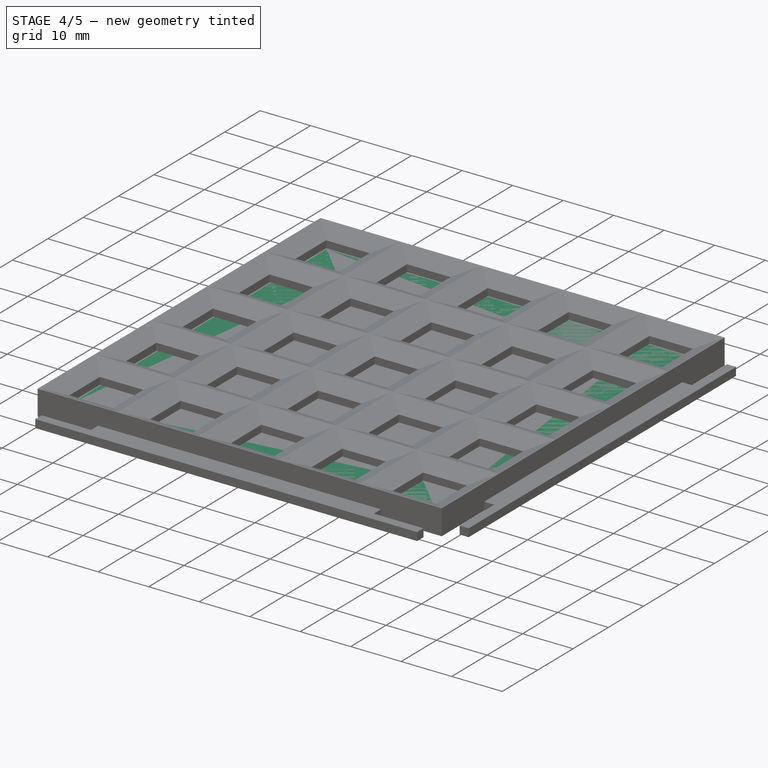
[diagram: stage 4 of 5 — iso view after this stage's code; geometry added in this stage tinted green]
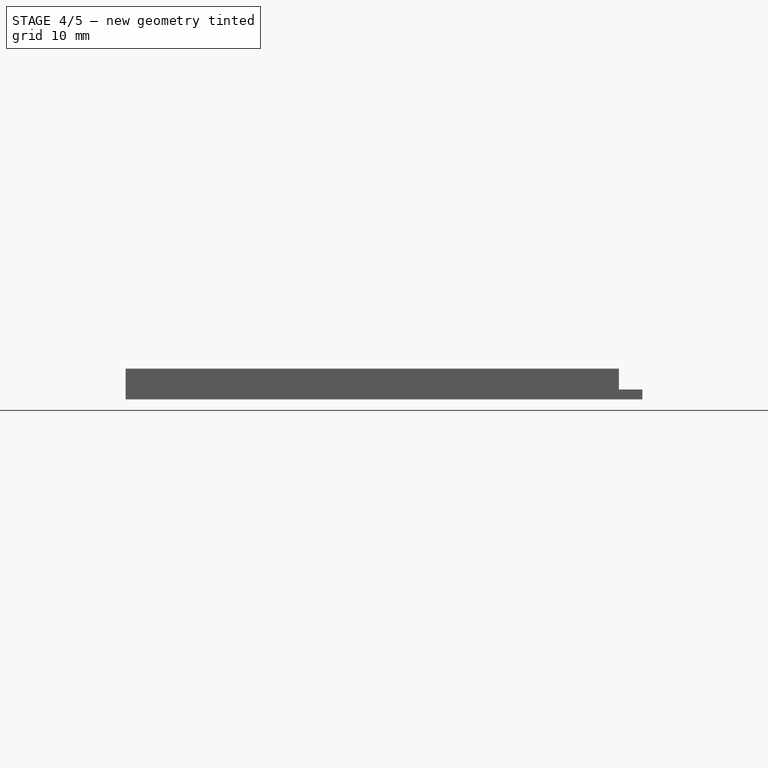
[diagram: stage 4 of 5 — front view after this stage's code; geometry added in this stage tinted green]
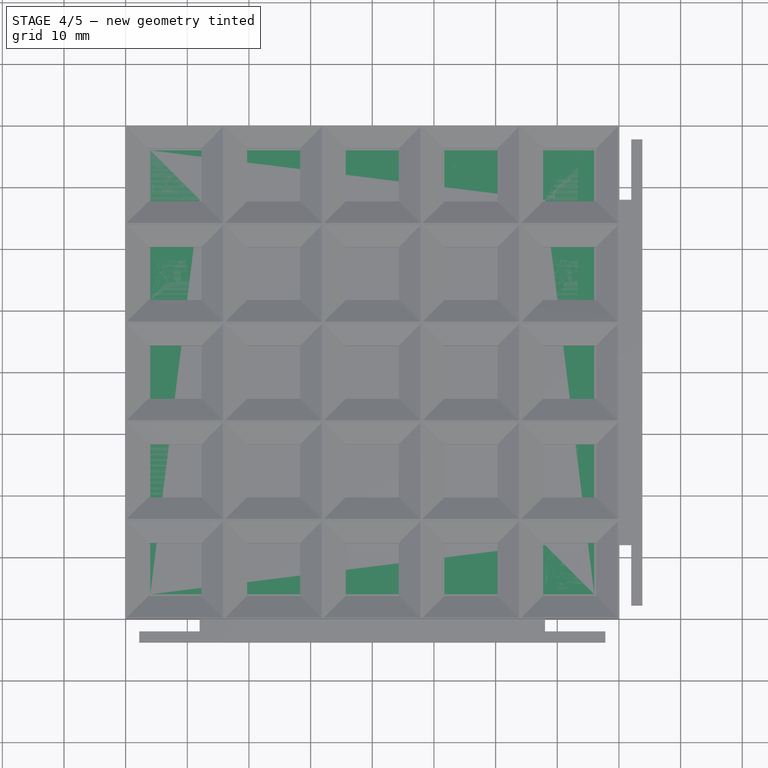
[diagram: stage 4 of 5 — top view after this stage's code; geometry added in this stage tinted green]
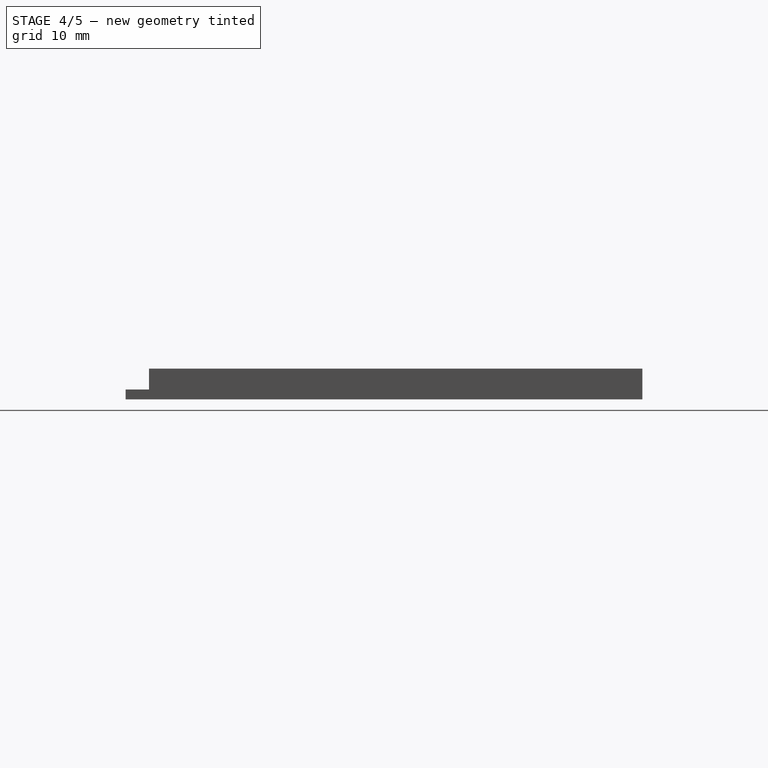
[diagram: stage 4 of 5 — right view after this stage's code; geometry added in this stage tinted green]
FEATURE [PartDesign::Line] DatumLine004
  AttacherType = Attacher::AttachEngineLine
  MapMode = 29
  Placement = pos=(-40,-32,0.2) rot=(1,0,0;1.5708rad)
  Support = -> [Array]
FEATURE [PartDesign::Line] DatumLine005
  AttacherType = Attacher::AttachEngineLine
  MapMode = 29
  Placement = pos=(-32,-40,0.2) rot=(0.57735,0.57735,0.57735;2.0944rad)
  Support = -> [Array]
FEATURE [PartDesign::Line] DatumLine006
  AttacherType = Attacher::AttachEngineLine
  MapMode = 29
  Placement = pos=(-32,40,0.2) rot=(0.57735,-0.57735,-0.57735;2.0944rad)
  Support = -> [Array]
FEATURE [Sketcher::SketchObject] Sketch005  label="PapaLock"
  ExternalGeometry = -> [DatumLine004,DatumLine005,DatumLine006]
  sketch-geometry (12):
    g0: LineSegment [constr] StartX=-40 StartY=28 StartZ=0 EndX=-40 EndY=40 EndZ=0
    g1: LineSegment [constr] StartX=-40 StartY=-28 StartZ=0 EndX=-40 EndY=-40 EndZ=0
    g2: LineSegment StartX=-40 StartY=28 StartZ=0 EndX=-42 EndY=28 EndZ=0
    g3: LineSegment StartX=-42 StartY=28 StartZ=0 EndX=-42 EndY=37.8 EndZ=0
    g4: LineSegment StartX=-42 StartY=37.8 StartZ=0 EndX=-43.8 EndY=37.8 EndZ=0
    g5: LineSegment StartX=-43.8 StartY=37.8 StartZ=0 EndX=-43.8 EndY=-37.8 EndZ=0
    g6: LineSegment StartX=-43.8 StartY=-37.8 StartZ=0 EndX=-42 EndY=-37.8 EndZ=0
    g7: LineSegment StartX=-42 StartY=-37.8 StartZ=0 EndX=-42 EndY=-28 EndZ=0
    g8: LineSegment StartX=-42 StartY=-28 StartZ=0 EndX=-40 EndY=-28 EndZ=0
    g9: LineSegment StartX=-40 StartY=28 StartZ=0 EndX=-40 EndY=-28 EndZ=0
    g10: LineSegment [constr] StartX=-42 StartY=37.8 StartZ=0 EndX=-44 EndY=37.8 EndZ=0
    g11: LineSegment [constr] StartX=-43.8 StartY=-37.8 StartZ=0 EndX=-44 EndY=-37.8 EndZ=0
  constraints (36):
    c: PointOnObject(g1,g-3)
    c: PointOnObject(g0,g-3)
    c: PointOnObject(g0,g-5)
    c: PointOnObject(g1,g-4)
    c: Vertical(g1)
    c: Vertical(g0)
    c: Horizontal(g2)
    c: Coincident(g3,g2)
    c: Vertical(g3)
    c: Horizontal(g4)
    c: Vertical(g5)
    c: Coincident(g6,g5)
    c: Horizontal(g6)
    c: Vertical(g7)
    c: Horizontal(g8)
    c: Coincident(g4,g3)
    c: Coincident(g4,g5)
    c: Coincident(g6,g7)
    c: Coincident(g7,g8)
    c: Equal(g7,g3)
    c: Coincident(g0,g2)
    c: Coincident(g1,g8)
    c: Equal(g1,g0)
    c: DistanceY(g0,g0) = 12
    c: Coincident(g9,g2)
    c: Coincident(g9,g8)
    c: DistanceY(g3,g3) = 9.8
    c: Equal(g8,g2)
    c: DistanceX(g2,g2) = 2
    c: Coincident(g10,g3)
    c: Horizontal(g10)
    c: Coincident(g11,g5)
    c: Horizontal(g11)
    c: DistanceX(g11,g11) = 0.2
    c: Vertical(g11,g10)
    c: Equal(g10,g2)
FEATURE [Sketcher::SketchObject] Sketch006  label="MamaLock"
  ExternalGeometry = -> [Sketch005,DatumLine004,DatumLine005,DatumLine006]
  MapMode = 5
  Placement = pos=(-32,-32,0.2) rot=(1,0,0;3.14159rad)
  Support = -> [Array]
  sketch-geometry (13):
    g0: LineSegment StartX=-8 StartY=-60.2 StartZ=0 EndX=-6.2 EndY=-60.2 EndZ=0
    g1: LineSegment StartX=-6.2 StartY=-60.2 StartZ=0 EndX=-6.2 EndY=-70 EndZ=0
    g2: LineSegment StartX=-6.2 StartY=-70 StartZ=0 EndX=-4.2 EndY=-70 EndZ=0
    g3: LineSegment StartX=-4.2 StartY=-70 StartZ=0 EndX=-4.2 EndY=6 EndZ=0
    g4: LineSegment StartX=-4.2 StartY=6 StartZ=0 EndX=-6.2 EndY=6 EndZ=0
    g5: LineSegment StartX=-6.2 StartY=6 StartZ=0 EndX=-6.2 EndY=-3.8 EndZ=0
    g6: LineSegment StartX=-6.2 StartY=-3.8 StartZ=0 EndX=-8 EndY=-3.8 EndZ=0
    g7: LineSegment StartX=-8 StartY=-3.8 StartZ=0 EndX=-8 EndY=-60.2 EndZ=0
    g8: LineSegment [constr] StartX=-8 StartY=6 StartZ=0 EndX=-8 EndY=5.8 EndZ=0
    g9: LineSegment [constr] StartX=-6.2 StartY=-3.8 StartZ=0 EndX=-6.2 EndY=-4 EndZ=0
    g10: LineSegment [constr] StartX=-6.2 StartY=-60.2 StartZ=0 EndX=-6.2 EndY=-60 EndZ=0
    g11: LineSegment [constr] StartX=-11.8 StartY=-69.8 StartZ=0 EndX=-9.8 EndY=-69.8 EndZ=0
    g12: LineSegment [constr] StartX=-10 StartY=-69.8 StartZ=0 EndX=-9.8 EndY=-69.8 EndZ=0
  constraints (40):
    c: Coincident(g0,g7)
    c: Coincident(g6,g7)
    c: Coincident(g0,g1)
    c: Coincident(g1,g2)
    c: Coincident(g4,g5)
    c: Coincident(g5,g6)
    c: Coincident(g2,g3)
    c: Coincident(g3,g4)
    c: PointOnObject(g6,g-9)
    c: Vertical(g5)
    c: Horizontal(g6)
    c: Horizontal(g4)
    c: Vertical(g3)
    c: Vertical(g7)
    c: Horizontal(g0)
    c: Vertical(g1)
    c: Horizontal(g2)
    c: Equal(g5,g1)
    c: Equal(g4,g-6)
    c: Equal(g6,g-4)
    c: PointOnObject(g8,g-9)
    c: PointOnObject(g8,g-9)
    c: Horizontal(g8,g4)
    c: Horizontal(g8,g-14)
    c: Coincident(g9,g5)
    c: Vertical(g9)
    c: Horizontal(g9,g-7)
    c: Equal(g9,g8)
    c: Vertical(g0,g9)
    c: Coincident(g10,g0)
    c: Vertical(g10)
    c: Horizontal(g10,g-12)
    c: Equal(g10,g9)
    c: Coincident(g11,g-5)
    c: Horizontal(g11)
    c: Equal(g11,g2)
    c: Horizontal(g12)
    c: Vertical(g12,g11)
    c: Equal(g12,g10)
    c: Coincident(g12,g-3)
FEATURE [PartDesign::Pocket] Pocket
  Length = 1.8
  Length2 = 100
  Placement = pos=(-32,-32,0) rot=(0,0,1;0rad)
  Profile = -> Sketch006
  Type = 0
FEATURE [PartDesign::PolarPattern] PolarPattern002
  Angle = 360
  Axis = -> Z_Axis004
  Occurrences = 2
  Originals = -> [Pocket]
  Placement = pos=(-32,-32,0) rot=(0,0,1;0rad)
FEATURE [PartDesign::PolarPattern] PolarPattern003
  Angle = 90
  Axis = -> Z_Axis004
  BaseFeature = -> PolarPattern002
  Occurrences = 2
  Placement = pos=(-32,-32,0) rot=(0,0,1;0rad)
FEATURE [Part::Part2DObjectPython] ShapeString007  # Draft 2D object (typed FeaturePython)
  AttachmentOffset = pos=(27.5,62,0) rot=(0,0,1;0rad)
  FontFile = <path>
  MapMode = 5
  Placement = pos=(-4.5,30,2.2) rot=(0,0,1;0rad)
  Size = 3.8
  String = 3W
  Support = -> [PolarPattern003]
  Tracking = 0
  expr: AttachmentOffset.Base.y = 16 * 4 - 2
  expr: AttachmentOffset.Base.x = 16 * 2 - 4.5
FEATURE [PartDesign::Pocket] Pocket008
  BaseFeature = -> PolarPattern002
  Length = 0.6
  Length2 = 100
  Placement = pos=(-32,-32,0) rot=(0,0,1;0rad)
  Profile = -> ShapeString007
  Type = 0
FEATURE [Part::Part2DObjectPython] ShapeString008  # Draft 2D object (typed FeaturePython)
  AttachmentOffset = pos=(-3.5,46.5,0) rot=(0,0,1;0rad)
  FontFile = <path>
  MapMode = 5
  Placement = pos=(-35.5,14.5,2.2) rot=(0,0,1;0rad)
  Size = 3.8
  String = 3L
  Support = -> [Pocket008]
  Tracking = 0
  expr: AttachmentOffset.Base.y = 16 * 3 - 1.5
FEATURE [PartDesign::Pocket] Pocket009
  BaseFeature = -> Pocket008
  Length = 0.6
  Length2 = 100
  Placement = pos=(-32,-32,0) rot=(0,0,1;0rad)
  Profile = -> ShapeString008
  Type = 0
FEATURE [Part::Part2DObjectPython] ShapeString009  # Draft 2D object (typed FeaturePython)
  AttachmentOffset = pos=(60.5,46.5,0) rot=(0,0,1;0rad)
  FontFile = <path>
  MapMode = 5
  Placement = pos=(28.5,14.5,2.2) rot=(0,0,1;0rad)
  Size = 3.8
  String = 3L
  Support = -> [Pocket009]
  Tracking = 0
  expr: AttachmentOffset.Base.x = 16 * 4 - 3.5
  expr: AttachmentOffset.Base.y = 16 * 3 - 1.5
FEATURE [PartDesign::Pocket] Pocket010
  BaseFeature = -> Pocket009
  Length = 0.6
  Length2 = 100
  Placement = pos=(-32,-32,0) rot=(0,0,1;0rad)
  Profile = -> ShapeString009
  Type = 0
FEATURE [Part::Part2DObjectPython] ShapeString010  # Draft 2D object (typed FeaturePython)
  AttachmentOffset = pos=(28.5,14.5,0) rot=(0,0,1;0rad)
  FontFile = <path>
  MapMode = 5
  Placement = pos=(-3.5,-17.5,2.2) rot=(0,0,1;0rad)
  Size = 3.8
  String = 2L
  Support = -> [Pocket010]
  Tracking = 0
  expr: AttachmentOffset.Base.y = 16 - 1.5
  expr: AttachmentOffset.Base.x = 16 * 2 - 3.5
  expr: AttachmentOffset.Rotation.Axis.x = 0
  expr: AttachmentOffset.Rotation.Axis.y = 0
FEATURE [PartDesign::Pocket] Pocket011
  BaseFeature = -> Pocket010
  Length = 0.6
  Length2 = 100
  Placement = pos=(-32,-32,0) rot=(0,0,1;0rad)
  Profile = -> ShapeString010
  Type = 0
FEATURE [Part::Part2DObjectPython] ShapeString011  # Draft 2D object (typed FeaturePython)
  AttachmentOffset = pos=(12.5,30.5,0) rot=(0,0,1;0rad)
  FontFile = <path>
  MapMode = 5
  Placement = pos=(-19.5,-1.5,2.2) rot=(0,0,1;0rad)
  Size = 3.8
  String = 2L
  Support = -> [Pocket011]
  Tracking = 0
  expr: AttachmentOffset.Base.y = 16 * 2 - 1.5
  expr: AttachmentOffset.Base.x = 16 - 3.5
FEATURE [PartDesign::Pocket] Pocket012
  BaseFeature = -> Pocket011
  Length = 0.6
  Length2 = 100
  Placement = pos=(-32,-32,0) rot=(0,0,1;0rad)
  Profile = -> ShapeString011
  Type = 0
FEATURE [Part::Part2DObjectPython] ShapeString012  # Draft 2D object (typed FeaturePython)
  AttachmentOffset = pos=(44.5,30.5,0) rot=(0,0,1;0rad)
  FontFile = <path>
  MapMode = 5
  Placement = pos=(12.5,-1.5,2.2) rot=(0,0,1;0rad)
  Size = 3.8
  String = 2L
  Support = -> [Pocket012]
  Tracking = 0
  expr: AttachmentOffset.Base.y = 16 * 2 - 1.5
  expr: AttachmentOffset.Base.x = 16 * 3 - 3.5
FEATURE [PartDesign::Pocket] Pocket013
  BaseFeature = -> Pocket012
  Length = 0.6
  Length2 = 100
  Placement = pos=(-32,-32,0) rot=(0,0,1;0rad)
  Profile = -> ShapeString012
  Type = 0
FEATURE [Sketcher::SketchObject] CopySketch005
  Placement = pos=(0,0,0.2) rot=(0,0,1;1.5708rad)
  sketch-geometry (12):
    g0: LineSegment [constr] StartX=-40 StartY=28 StartZ=0 EndX=-40 EndY=40 EndZ=0
    g1: LineSegment [constr] StartX=-40 StartY=-28 StartZ=0 EndX=-40 EndY=-40 EndZ=0
    g2: LineSegment StartX=-40 StartY=28 StartZ=0 EndX=-42 EndY=28 EndZ=0
    g3: LineSegment StartX=-42 StartY=28 StartZ=0 EndX=-42 EndY=37.8 EndZ=0
    g4: LineSegment StartX=-42 StartY=37.8 StartZ=0 EndX=-43.8 EndY=37.8 EndZ=0
    g5: LineSegment StartX=-43.8 StartY=37.8 StartZ=0 EndX=-43.8 EndY=-37.8 EndZ=0
    g6: LineSegment StartX=-43.8 StartY=-37.8 StartZ=0 EndX=-42 EndY=-37.8 EndZ=0
    g7: LineSegment StartX=-42 StartY=-37.8 StartZ=0 EndX=-42 EndY=-28 EndZ=0
    g8: LineSegment StartX=-42 StartY=-28 StartZ=0 EndX=-40 EndY=-28 EndZ=0
    g9: LineSegment StartX=-40 StartY=28 StartZ=0 EndX=-40 EndY=-28 EndZ=0
    g10: LineSegment [constr] StartX=-42 StartY=37.8 StartZ=0 EndX=-44 EndY=37.8 EndZ=0
    g11: LineSegment [constr] StartX=-43.8 StartY=-37.8 StartZ=0 EndX=-44 EndY=-37.8 EndZ=0
  constraints (32):
    c: Vertical(g1)
    c: Vertical(g0)
    c: Horizontal(g2)
    c: Coincident(g3,g2)
    c: Vertical(g3)
    c: Horizontal(g4)
    c: Vertical(g5)
    c: Coincident(g6,g5)
    c: Horizontal(g6)
    c: Vertical(g7)
    c: Horizontal(g8)
    c: Coincident(g4,g3)
    c: Coincident(g4,g5)
    c: Coincident(g6,g7)
    c: Coincident(g7,g8)
    c: Equal(g7,g3)
    c: Coincident(g0,g2)
    c: Coincident(g1,g8)
    c: Equal(g1,g0)
    c: DistanceY(g0,g0) = 12
    c: Coincident(g9,g2)
    c: Coincident(g9,g8)
    c: DistanceY(g3,g3) = 9.8
    c: Equal(g8,g2)
    c: DistanceX(g2,g2) = 2
    c: Coincident(g10,g3)
    c: Horizontal(g10)
    c: Coincident(g11,g5)
    c: Horizontal(g11)
    c: DistanceX(g11,g11) = 0.2
    c: Vertical(g11,g10)
    c: Equal(g10,g2)
FEATURE [PartDesign::Pad] Pad006
  BaseFeature = -> Pocket013
  Length = 1.6
  Length2 = 100
  Placement = pos=(-32,-32,0) rot=(0,0,1;0rad)
  Profile = -> CopySketch005
  Type = 0
FEATURE [Sketcher::SketchObject] Sketch022  label="MamaLock002"
  MapMode = 5
  Placement = pos=(-32,-32,0.2) rot=(1,0,0;3.14159rad)
  sketch-geometry (13):
    g0: LineSegment StartX=-8 StartY=-60.2 StartZ=0 EndX=-6.2 EndY=-60.2 EndZ=0
    g1: LineSegment StartX=-6.2 StartY=-60.2 StartZ=0 EndX=-6.2 EndY=-70 EndZ=0
    g2: LineSegment StartX=-6.2 StartY=-70 StartZ=0 EndX=-4.2 EndY=-70 EndZ=0
    g3: LineSegment StartX=-4.2 StartY=-70 StartZ=0 EndX=-4.2 EndY=6 EndZ=0
    g4: LineSegment StartX=-4.2 StartY=6 StartZ=0 EndX=-6.2 EndY=6 EndZ=0
    g5: LineSegment StartX=-6.2 StartY=6 StartZ=0 EndX=-6.2 EndY=-3.8 EndZ=0
    g6: LineSegment StartX=-6.2 StartY=-3.8 StartZ=0 EndX=-8 EndY=-3.8 EndZ=0
    g7: LineSegment StartX=-8 StartY=-3.8 StartZ=0 EndX=-8 EndY=-60.2 EndZ=0
    g8: LineSegment [constr] StartX=-8 StartY=6 StartZ=0 EndX=-8 EndY=5.8 EndZ=0
    g9: LineSegment [constr] StartX=-6.2 StartY=-3.8 StartZ=0 EndX=-6.2 EndY=-4 EndZ=0
    g10: LineSegment [constr] StartX=-6.2 StartY=-60.2 StartZ=0 EndX=-6.2 EndY=-60 EndZ=0
    g11: LineSegment [constr] StartX=-11.8 StartY=-69.8 StartZ=0 EndX=-9.8 EndY=-69.8 EndZ=0
    g12: LineSegment [constr] StartX=-10 StartY=-69.8 StartZ=0 EndX=-9.8 EndY=-69.8 EndZ=0
  constraints (30):
    c: Coincident(g0,g7)
    c: Coincident(g6,g7)
    c: Coincident(g0,g1)
    c: Coincident(g1,g2)
    c: Coincident(g4,g5)
    c: Coincident(g5,g6)
    c: Coincident(g2,g3)
    c: Coincident(g3,g4)
    c: Vertical(g5)
    c: Horizontal(g6)
    c: Horizontal(g4)
    c: Vertical(g3)
    c: Vertical(g7)
    c: Horizontal(g0)
    c: Vertical(g1)
    c: Horizontal(g2)
    c: Equal(g5,g1)
    c: Horizontal(g8,g4)
    c: Coincident(g9,g5)
    c: Vertical(g9)
    c: Equal(g9,g8)
    c: Vertical(g0,g9)
    c: Coincident(g10,g0)
    c: Vertical(g10)
    c: Equal(g10,g9)
    c: Horizontal(g11)
    c: Equal(g11,g2)
    c: Horizontal(g12)
    c: Vertical(g12,g11)
    c: Equal(g12,g10)
FEATURE [PartDesign::Pocket] Pocket033
  Length = 1.8
  Length2 = 100
  Placement = pos=(-32,-32,0) rot=(0,0,1;0rad)
  Profile = -> Sketch022
  Type = 0
FEATURE [PartDesign::PolarPattern] PolarPattern005
  Angle = 360
  Axis = -> Z_Axis011
  BaseFeature = -> Pocket033
  Occurrences = 4
  Originals = -> [Pocket033]
  Placement = pos=(-32,-32,0) rot=(0,0,1;0rad)
FEATURE [Part::Part2DObjectPython] ShapeString029  # Draft 2D object (typed FeaturePython)
  FontFile = <path>
  Placement = pos=(17,-13,2.2) rot=(0,0,1;3.92699rad)
  Size = 3.8
  String = 2L
  Tracking = 0
  expr: Placement.Base.y = -16 + 3
  expr: Placement.Base.x = 16 + 1
FEATURE [Part::Part2DObjectPython] ShapeString030  # Draft 2D object (typed FeaturePython)
  FontFile = <path>
  Placement = pos=(-13,-17,2.2) rot=(0,0,1;2.35619rad)
  Size = 3.8
  String = 2L
  Tracking = 0
  expr: Placement.Base.y = -16 - 1
  expr: Placement.Base.x = -16 + 3
FEATURE [PartDesign::Pocket] Pocket036
  BaseFeature = -> PolarPattern005
  Length = 0.6
  Length2 = 100
  Placement = pos=(-32,-32,0) rot=(0,0,1;0rad)
  Profile = -> ShapeString029
  Type = 0
FEATURE [Part::Part2DObjectPython] ShapeString031  # Draft 2D object (typed FeaturePython)
  FontFile = <path>
  Placement = pos=(-17.5,13,2.2) rot=(0,0,1;0.785398rad)
  Size = 3.8
  String = 2L
  Tracking = 0
  expr: Placement.Base.y = 16 - 3
  expr: Placement.Base.x = -16 - 1.5
FEATURE [Part::Part2DObjectPython] ShapeString032  # Draft 2D object (typed FeaturePython)
  FontFile = <path>
  Placement = pos=(12.5,17.2,2.2) rot=(0,0,-1;0.785398rad)
  Size = 3.8
  String = 2L
  Tracking = 0
  expr: Placement.Base.y = 16 + 1.2
  expr: Placement.Base.x = 16 - 3.5
FEATURE [PartDesign::Pocket] Pocket035
  BaseFeature = -> Pocket036
  Length = 0.6
  Length2 = 100
  Placement = pos=(-32,-32,0) rot=(0,0,1;0rad)
  Profile = -> ShapeString032
  Type = 0
FEATURE [PartDesign::Pocket] Pocket038
  BaseFeature = -> Pocket035
  Length = 0.6
  Length2 = 100
  Placement = pos=(-32,-32,0) rot=(0,0,1;0rad)
  Profile = -> ShapeString030
  Type = 0
FEATURE [PartDesign::Pocket] Pocket039
  BaseFeature = -> Pocket038
  Length = 0.6
  Length2 = 100
  Placement = pos=(-32,-32,0) rot=(0,0,1;0rad)
  Profile = -> ShapeString031
  Type = 0
FEATURE [Part::Part2DObjectPython] Circle002  # Draft 2D object (typed FeaturePython)
  FirstAngle = 0
  LastAngle = 0
  MakeFace = false
  Placement = pos=(0,0,2.2) rot=(0,0,-1;1.5708rad)
  Radius = 3
FEATURE [PartDesign::Pocket] Pocket034
  BaseFeature = -> Pocket039
  Length = 0.6
  Length2 = 100
  Placement = pos=(-32,-32,0) rot=(0,0,1;0rad)
  Profile = -> Circle002
  Type = 0
FEATURE [Part::Part2DObjectPython] ShapeString033  # Draft 2D object (typed FeaturePython)
  AttachmentOffset = pos=(3,-1,0) rot=(0,0,1;2.35619rad)
  FontFile = <path>
  MapMode = 5
  Placement = pos=(-29,-33,2.2) rot=(0,0,1;2.35619rad)
  Size = 3.8
  String = 3L
  Support = -> [Pocket034]
  Tracking = 0
FEATURE [Part::Part2DObjectPython] ShapeString034  # Draft 2D object (typed FeaturePython)
  AttachmentOffset = pos=(-1.5,61.5,0) rot=(0,0,1;0.785398rad)
  FontFile = <path>
  MapMode = 5
  Placement = pos=(-33.5,29.5,2.2) rot=(0,0,1;0.785398rad)
  Size = 3.8
  String = 3L
  Support = -> [Pocket034]
  Tracking = 0
  expr: AttachmentOffset.Base.y = 16 * 4 - 2.5
  expr: AttachmentOffset.Base.x = -1.5
FEATURE [Part::Part2DObjectPython] ShapeString035  # Draft 2D object (typed FeaturePython)
  AttachmentOffset = pos=(65,3,0) rot=(0,0,1;-2.35619rad)
  FontFile = <path>
  MapMode = 5
  Placement = pos=(33,-29,2.2) rot=(0,0,1;3.92699rad)
  Size = 3.8
  String = 3L
  Support = -> [Pocket034]
  Tracking = 0
  expr: AttachmentOffset.Base.y = 3
  expr: AttachmentOffset.Base.x = 16 * 4 + 1
  expr: AttachmentOffset.Rotation.Axis.x = 0
FEATURE [Part::Part2DObjectPython] ShapeString036  # Draft 2D object (typed FeaturePython)
  AttachmentOffset = pos=(61,65.5,0) rot=(0,0,1;-0.785398rad)
  FontFile = <path>
  MapMode = 5
  Placement = pos=(29,33.5,2.2) rot=(0,0,1;5.49779rad)
  Size = 3.8
  String = 3L
  Support = -> [Pocket034]
  Tracking = 0
  expr: AttachmentOffset.Base.y = 16 * 4 + 1.5
  expr: AttachmentOffset.Base.x = 16 * 4 - 3
FEATURE [PartDesign::Pocket] Pocket042
  BaseFeature = -> Pocket034
  Length = 0.6
  Length2 = 100
  Placement = pos=(-32,-32,0) rot=(0,0,1;0rad)
  Profile = -> ShapeString034
  Type = 0
FEATURE [PartDesign::Pocket] Pocket041
  BaseFeature = -> Pocket042
  Length = 0.6
  Length2 = 100
  Placement = pos=(-32,-32,0) rot=(0,0,1;0rad)
  Profile = -> ShapeString036
  Type = 0
FEATURE [PartDesign::Pocket] Pocket040
  BaseFeature = -> Pocket041
  Length = 0.6
  Length2 = 100
  Placement = pos=(-32,-32,0) rot=(0,0,1;0rad)
  Profile = -> ShapeString033
  Type = 0
FEATURE [PartDesign::Body] Body011  label="Center-field002"
  Group = -> [Pocket033,PolarPattern005,ShapeString029,ShapeString031,ShapeString030,ShapeString032,Circle002,Pocket036,Pocket035,Pocket038,Pocket039,Pocket034,ShapeString034,ShapeString036,ShapeString035,ShapeString033,Pocket042,Pocket041,Pocket040,Pocket037]
  Origin = -> Origin011
  Tip = -> Pocket037
FEATURE [Sketcher::SketchObject] Sketch023
  AttachmentOffset = pos=(0,0,2.2) rot=(0,0,1;0rad)
  MapMode = 5
  Placement = pos=(0,0,2.2) rot=(0,0,1;0rad)
  Support = -> [XY_Plane012]
  expr: Constraints[31] = 16 * 4 - 8
  expr: Constraints[30] = 16 * 5 - 8
  sketch-geometry (12):
    g0: LineSegment StartX=-36 StartY=36 StartZ=0 EndX=36 EndY=36 EndZ=0
    g1: LineSegment StartX=36 StartY=36 StartZ=0 EndX=36 EndY=-36 EndZ=0
    g2: LineSegment StartX=36 StartY=-36 StartZ=0 EndX=-36 EndY=-36 EndZ=0
    g3: LineSegment StartX=-36 StartY=-36 StartZ=0 EndX=-36 EndY=36 EndZ=0
    g4: LineSegment StartX=28 StartY=-28 StartZ=0 EndX=-28 EndY=-28 EndZ=0
    g5: LineSegment StartX=-28 StartY=-28 StartZ=0 EndX=-28 EndY=28 EndZ=0
    g6: LineSegment StartX=-28 StartY=28 StartZ=0 EndX=28 EndY=28 EndZ=0
    g7: LineSegment StartX=28 StartY=28 StartZ=0 EndX=28 EndY=-28 EndZ=0
    g8: LineSegment [constr] StartX=28 StartY=-28 StartZ=0 EndX=28 EndY=-36 EndZ=0
    g9: LineSegment [constr] StartX=28 StartY=-28 StartZ=0 EndX=36 EndY=-28 EndZ=0
    g10: LineSegment [constr] StartX=-28 StartY=28 StartZ=0 EndX=-28 EndY=36 EndZ=0
    g11: LineSegment [constr] StartX=-28 StartY=28 StartZ=0 EndX=-36 EndY=28 EndZ=0
  constraints (34):
    c: Coincident(g0,g1)
    c: Coincident(g1,g2)
    c: Coincident(g2,g3)
    c: Coincident(g3,g0)
    c: Horizontal(g0)
    c: Horizontal(g2)
    c: Vertical(g1)
    c: Vertical(g3)
    c: Coincident(g4,g5)
    c: Coincident(g5,g6)
    c: Coincident(g6,g7)
    c: Coincident(g7,g4)
    c: Horizontal(g4)
    c: Vertical(g7)
    c: Equal(g2,g3)
    c: Equal(g5,g4)
    c: Coincident(g8,g4)
    c: PointOnObject(g8,g2)
    c: Vertical(g8)
    c: Coincident(g9,g4)
    c: PointOnObject(g9,g1)
    c: Horizontal(g9)
    c: Coincident(g10,g5)
    c: PointOnObject(g10,g0)
    c: Vertical(g10)
    c: Coincident(g11,g5)
    c: Horizontal(g11)
    c: Equal(g11,g10)
    c: Equal(g10,g9)
    c: Equal(g9,g8)
    c: DistanceX(g2,g2) = 72
    c: DistanceX(g4,g4) = 56
    c: Symmetric(g5,g4,g-1)
    c: Symmetric(g5,g6,g-2)
FEATURE [PartDesign::Pad] Pad009
  Length = 0.6
  Length2 = 100
  Profile = -> Sketch023
  Reversed = true
  Type = 0
FEATURE [Sketcher::SketchObject] Sketch024
  AttachmentOffset = pos=(0,0,2.2) rot=(0,0,1;0rad)
  MapMode = 5
  Placement = pos=(0,0,2.2) rot=(0,0,1;0rad)
  Support = -> [XY_Plane015]
  expr: Constraints[10] = 8
  expr: Constraints[8] = 16 * 4 + 8
  sketch-geometry (4):
    g0: LineSegment StartX=-36 StartY=24 StartZ=0 EndX=36 EndY=24 EndZ=0
    g1: LineSegment StartX=36 StartY=24 StartZ=0 EndX=36 EndY=8 EndZ=0
    g2: LineSegment StartX=36 StartY=8 StartZ=0 EndX=-36 EndY=8 EndZ=0
    g3: LineSegment StartX=-36 StartY=8 StartZ=0 EndX=-36 EndY=24 EndZ=0
  constraints (11):
    c: Coincident(g0,g1)
    c: Coincident(g1,g2)
    c: Coincident(g2,g3)
    c: Coincident(g3,g0)
    c: Horizontal(g2)
    c: Vertical(g1)
    c: Vertical(g3)
    c: Symmetric(g0,g0,g-2)
    c: DistanceX(g0,g0) = 72
    c: DistanceY(g1,g1) = 16
    c: DistanceY(g-1,g2) = 8
FEATURE [PartDesign::Pad] Pad010
  Length = 0.6
  Length2 = 100
  Profile = -> Sketch024
  Reversed = true
  Type = 0
FEATURE [PartDesign::Body] Body013  label="Middle-3L-f"
  Group = -> [Sketch024,Pad010]
  Origin = -> Origin015
  Tip = -> Pad010
FEATURE [Part::Cut] Cut003  label="Middle-3L-comp"
  Base = -> Body013
  Tool = -> Body004
FEATURE [Part::Part2DObjectPython] ShapeString040  # Draft 2D object (typed FeaturePython)
  AttachmentOffset = pos=(28.5,14.5,0) rot=(0,0,1;0rad)
  FontFile = <path>
  MapMode = 5
  Placement = pos=(-3.5,-17.5,2.2) rot=(0,0,1;0rad)
  Size = 3.8
  String = 2L
  Support = -> [Pocket046]
  Tracking = 0
  expr: AttachmentOffset.Base.y = 16 - 1.5
  expr: AttachmentOffset.Base.x = 16 * 2 - 3.5
  expr: AttachmentOffset.Rotation.Axis.x = 0
  expr: AttachmentOffset.Rotation.Axis.y = 0
FEATURE [PartDesign::Pocket] Pocket047
  BaseFeature = -> Pocket046
  Length = 0.6
  Length2 = 100
  Placement = pos=(-32,-32,0) rot=(0,0,1;0rad)
  Profile = -> ShapeString040
  Type = 0
FEATURE [Part::Part2DObjectPython] ShapeString041  # Draft 2D object (typed FeaturePython)
  AttachmentOffset = pos=(12.5,30.5,0) rot=(0,0,1;0rad)
  FontFile = <path>
  MapMode = 5
  Placement = pos=(-19.5,-1.5,2.2) rot=(0,0,1;0rad)
  Size = 3.8
  String = 2L
  Support = -> [Pocket047]
  Tracking = 0
  expr: AttachmentOffset.Base.y = 16 * 2 - 1.5
  expr: AttachmentOffset.Base.x = 16 - 3.5
FEATURE [PartDesign::Pocket] Pocket048
  BaseFeature = -> Pocket047
  Length = 0.6
  Length2 = 100
  Placement = pos=(-32,-32,0) rot=(0,0,1;0rad)
  Profile = -> ShapeString041
  Type = 0
FEATURE [Part::Part2DObjectPython] ShapeString042  # Draft 2D object (typed FeaturePython)
  AttachmentOffset = pos=(44.5,30.5,0) rot=(0,0,1;0rad)
  FontFile = <path>
  MapMode = 5
  Placement = pos=(12.5,-1.5,2.2) rot=(0,0,1;0rad)
  Size = 3.8
  String = 2L
  Support = -> [Pocket048]
  Tracking = 0
  expr: AttachmentOffset.Base.y = 16 * 2 - 1.5
  expr: AttachmentOffset.Base.x = 16 * 3 - 3.5
FEATURE [PartDesign::Pocket] Pocket049
  BaseFeature = -> Pocket048
  Length = 0.6
  Length2 = 100
  Placement = pos=(-32,-32,0) rot=(0,0,1;0rad)
  Profile = -> ShapeString042
  Type = 0
FEATURE [Sketcher::SketchObject] CopySketch006
  Placement = pos=(0,0,0.2) rot=(0,0,1;1.5708rad)
  sketch-geometry (12):
    g0: LineSegment [constr] StartX=-40 StartY=28 StartZ=0 EndX=-40 EndY=40 EndZ=0
    g1: LineSegment [constr] StartX=-40 StartY=-28 StartZ=0 EndX=-40 EndY=-40 EndZ=0
    g2: LineSegment StartX=-40 StartY=28 StartZ=0 EndX=-42 EndY=28 EndZ=0
    g3: LineSegment StartX=-42 StartY=28 StartZ=0 EndX=-42 EndY=37.8 EndZ=0
    g4: LineSegment StartX=-42 StartY=37.8 StartZ=0 EndX=-43.8 EndY=37.8 EndZ=0
    g5: LineSegment StartX=-43.8 StartY=37.8 StartZ=0 EndX=-43.8 EndY=-37.8 EndZ=0
    g6: LineSegment StartX=-43.8 StartY=-37.8 StartZ=0 EndX=-42 EndY=-37.8 EndZ=0
    g7: LineSegment StartX=-42 StartY=-37.8 StartZ=0 EndX=-42 EndY=-28 EndZ=0
    g8: LineSegment StartX=-42 StartY=-28 StartZ=0 EndX=-40 EndY=-28 EndZ=0
    g9: LineSegment StartX=-40 StartY=28 StartZ=0 EndX=-40 EndY=-28 EndZ=0
    g10: LineSegment [constr] StartX=-42 StartY=37.8 StartZ=0 EndX=-44 EndY=37.8 EndZ=0
    g11: LineSegment [constr] StartX=-43.8 StartY=-37.8 StartZ=0 EndX=-44 EndY=-37.8 EndZ=0
  constraints (32):
    c: Vertical(g1)
    c: Vertical(g0)
    c: Horizontal(g2)
    c: Coincident(g3,g2)
    c: Vertical(g3)
    c: Horizontal(g4)
    c: Vertical(g5)
    c: Coincident(g6,g5)
    c: Horizontal(g6)
    c: Vertical(g7)
    c: Horizontal(g8)
    c: Coincident(g4,g3)
    c: Coincident(g4,g5)
    c: Coincident(g6,g7)
    c: Coincident(g7,g8)
    c: Equal(g7,g3)
    c: Coincident(g0,g2)
    c: Coincident(g1,g8)
    c: Equal(g1,g0)
    c: DistanceY(g0,g0) = 12
    c: Coincident(g9,g2)
    c: Coincident(g9,g8)
    c: DistanceY(g3,g3) = 9.8
    c: Equal(g8,g2)
    c: DistanceX(g2,g2) = 2
    c: Coincident(g10,g3)
    c: Horizontal(g10)
    c: Coincident(g11,g5)
    c: Horizontal(g11)
    c: DistanceX(g11,g11) = 0.2
    c: Vertical(g11,g10)
    c: Equal(g10,g2)
FEATURE [PartDesign::Pad] Pad016
  BaseFeature = -> Pocket049
  Length = 1.6
  Length2 = 100
  Placement = pos=(-32,-32,0) rot=(0,0,1;0rad)
  Profile = -> CopySketch006
  Type = 0
FEATURE [PartDesign::Body] Body014  label="Middle-2L-f"
  Group = -> [Sketch025,Pad017]
  Origin = -> Origin016
  Tip = -> Pad017
FEATURE [Part::Cut] Cut004  label="Middle-2L-comp"
  Base = -> Body014
  Tool = -> Body015
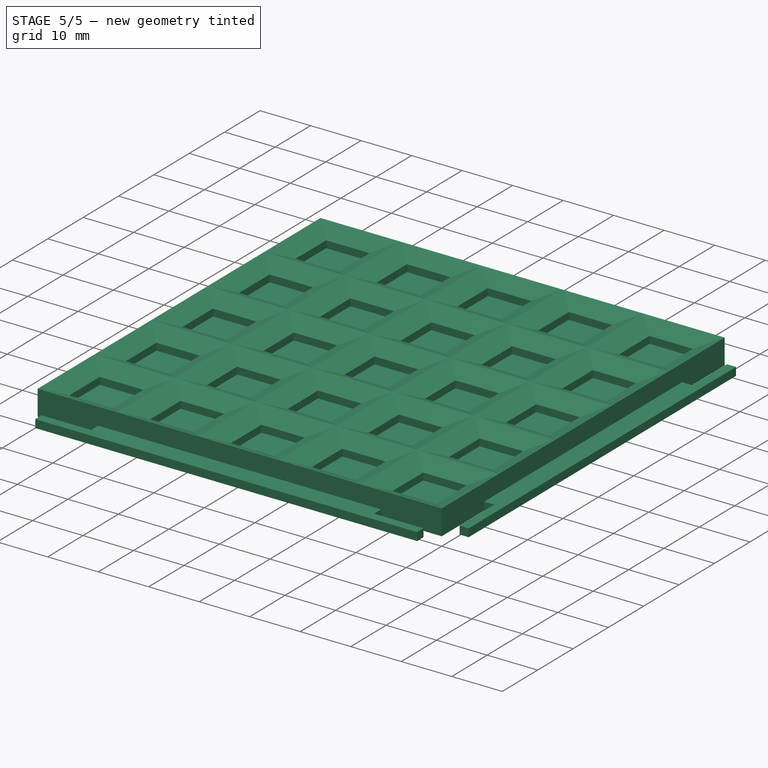
[diagram: stage 5 of 5 — iso view after this stage's code; geometry added in this stage tinted green]
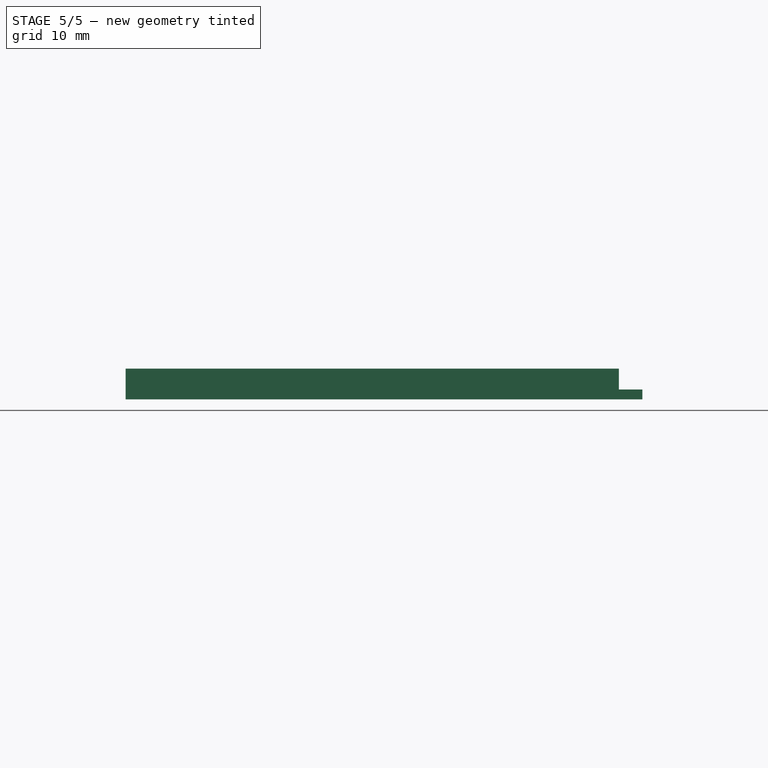
[diagram: stage 5 of 5 — front view after this stage's code; geometry added in this stage tinted green]
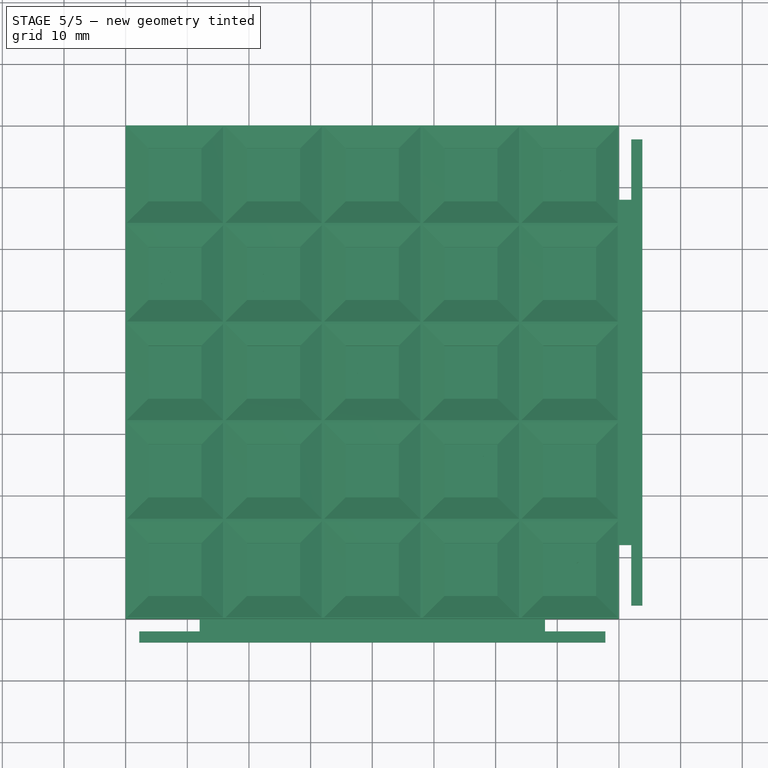
[diagram: stage 5 of 5 — top view after this stage's code; geometry added in this stage tinted green]
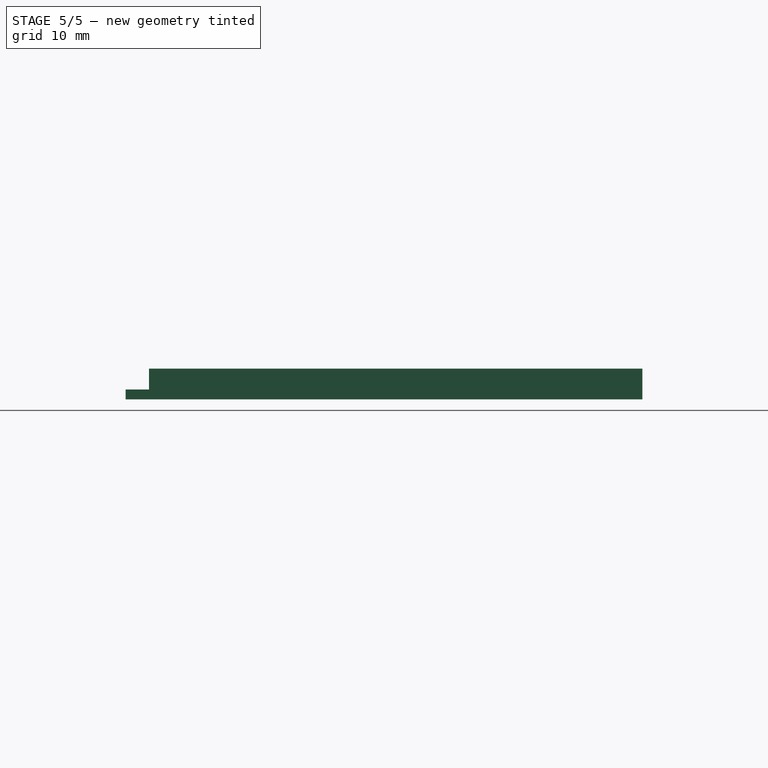
[diagram: stage 5 of 5 — right view after this stage's code; geometry added in this stage tinted green]
FEATURE [PartDesign::PolarPattern] PolarPattern
  Angle = 360
  Axis = -> Z_Axis002
  BaseFeature = -> Pocket
  Occurrences = 4
  Originals = -> [Pocket]
  Placement = pos=(-32,-32,0) rot=(0,0,1;0rad)
FEATURE [PartDesign::Body] Body004  label="Middle-field"
  Group = -> [PolarPattern002,PolarPattern003,ShapeString007,Pocket008,ShapeString008,Pocket009,ShapeString009,Pocket010,ShapeString010,Pocket011,ShapeString011,Pocket012,ShapeString012,Pocket013,CopySketch005,Pad006]
  Origin = -> Origin004
  Tip = -> Pad006
FEATURE [Part::Part2DObjectPython] Circle  # Draft 2D object (typed FeaturePython)
  FirstAngle = 0
  LastAngle = 0
  MakeFace = false
  Placement = pos=(0,0,2.2) rot=(0,0,-1;1.5708rad)
  Radius = 3
FEATURE [Part::Part2DObjectPython] ShapeString013  # Draft 2D object (typed FeaturePython)
  FontFile = <path>
  Placement = pos=(12.5,17.2,2.2) rot=(0,0,-1;0.785398rad)
  Size = 3.8
  String = 2L
  Tracking = 0
  expr: Placement.Base.y = 16 + 1.2
  expr: Placement.Base.x = 16 - 3.5
FEATURE [Part::Part2DObjectPython] ShapeString014  # Draft 2D object (typed FeaturePython)
  FontFile = <path>
  Placement = pos=(17,-13,2.2) rot=(0,0,1;3.92699rad)
  Size = 3.8
  String = 2L
  Tracking = 0
  expr: Placement.Base.y = -16 + 3
  expr: Placement.Base.x = 16 + 1
FEATURE [Part::Part2DObjectPython] ShapeString015  # Draft 2D object (typed FeaturePython)
  FontFile = <path>
  Placement = pos=(-17.5,13,2.2) rot=(0,0,1;0.785398rad)
  Size = 3.8
  String = 2L
  Tracking = 0
  expr: Placement.Base.y = 16 - 3
  expr: Placement.Base.x = -16 - 1.5
FEATURE [Part::Part2DObjectPython] ShapeString016  # Draft 2D object (typed FeaturePython)
  FontFile = <path>
  Placement = pos=(-13,-17,2.2) rot=(0,0,1;2.35619rad)
  Size = 3.8
  String = 2L
  Tracking = 0
  expr: Placement.Base.y = -16 - 1
  expr: Placement.Base.x = -16 + 3
FEATURE [PartDesign::Pocket] Pocket014
  BaseFeature = -> PolarPattern
  Length = 0.6
  Length2 = 100
  Placement = pos=(-32,-32,0) rot=(0,0,1;0rad)
  Profile = -> ShapeString014
  Type = 0
FEATURE [PartDesign::Pocket] Pocket015
  BaseFeature = -> Pocket014
  Length = 0.6
  Length2 = 100
  Placement = pos=(-32,-32,0) rot=(0,0,1;0rad)
  Profile = -> ShapeString013
  Type = 0
FEATURE [PartDesign::Pocket] Pocket016
  BaseFeature = -> Pocket015
  Length = 0.6
  Length2 = 100
  Placement = pos=(-32,-32,0) rot=(0,0,1;0rad)
  Profile = -> ShapeString016
  Type = 0
FEATURE [PartDesign::Pocket] Pocket017
  BaseFeature = -> Pocket016
  Length = 0.6
  Length2 = 100
  Placement = pos=(-32,-32,0) rot=(0,0,1;0rad)
  Profile = -> ShapeString015
  Type = 0
FEATURE [PartDesign::Pocket] Pocket018
  BaseFeature = -> Pocket017
  Length = 0.6
  Length2 = 100
  Placement = pos=(-32,-32,0) rot=(0,0,1;0rad)
  Profile = -> Circle
  Type = 0
FEATURE [Part::Part2DObjectPython] ShapeString017  # Draft 2D object (typed FeaturePython)
  AttachmentOffset = pos=(-1.5,61.5,0) rot=(0,0,1;0.785398rad)
  FontFile = <path>
  MapMode = 5
  Placement = pos=(-33.5,29.5,2.2) rot=(0,0,1;0.785398rad)
  Size = 3.8
  String = 3L
  Support = -> [Pocket018]
  Tracking = 0
  expr: AttachmentOffset.Base.y = 16 * 4 - 2.5
  expr: AttachmentOffset.Base.x = -1.5
FEATURE [Part::Part2DObjectPython] ShapeString018  # Draft 2D object (typed FeaturePython)
  AttachmentOffset = pos=(61,65.5,0) rot=(0,0,1;-0.785398rad)
  FontFile = <path>
  MapMode = 5
  Placement = pos=(29,33.5,2.2) rot=(0,0,1;5.49779rad)
  Size = 3.8
  String = 3L
  Support = -> [Pocket018]
  Tracking = 0
  expr: AttachmentOffset.Base.y = 16 * 4 + 1.5
  expr: AttachmentOffset.Base.x = 16 * 4 - 3
FEATURE [Part::Part2DObjectPython] ShapeString019  # Draft 2D object (typed FeaturePython)
  AttachmentOffset = pos=(65,3,0) rot=(0,0,1;-2.35619rad)
  FontFile = <path>
  MapMode = 5
  Placement = pos=(33,-29,2.2) rot=(0,0,1;3.92699rad)
  Size = 3.8
  String = 3L
  Support = -> [Pocket018]
  Tracking = 0
  expr: AttachmentOffset.Base.y = 3
  expr: AttachmentOffset.Base.x = 16 * 4 + 1
  expr: AttachmentOffset.Rotation.Axis.x = 0
FEATURE [Part::Part2DObjectPython] ShapeString020  # Draft 2D object (typed FeaturePython)
  AttachmentOffset = pos=(3,-1,0) rot=(0,0,1;2.35619rad)
  FontFile = <path>
  MapMode = 5
  Placement = pos=(-29,-33,2.2) rot=(0,0,1;2.35619rad)
  Size = 3.8
  String = 3L
  Support = -> [Pocket018]
  Tracking = 0
FEATURE [PartDesign::Pocket] Pocket019
  BaseFeature = -> Pocket018
  Length = 0.6
  Length2 = 100
  Placement = pos=(-32,-32,0) rot=(0,0,1;0rad)
  Profile = -> ShapeString017
  Type = 0
FEATURE [PartDesign::Pocket] Pocket020
  BaseFeature = -> Pocket019
  Length = 0.6
  Length2 = 100
  Placement = pos=(-32,-32,0) rot=(0,0,1;0rad)
  Profile = -> ShapeString018
  Type = 0
FEATURE [PartDesign::Pocket] Pocket021
  BaseFeature = -> Pocket020
  Length = 0.6
  Length2 = 100
  Placement = pos=(-32,-32,0) rot=(0,0,1;0rad)
  Profile = -> ShapeString020
  Type = 0
FEATURE [PartDesign::Pocket] Pocket022
  BaseFeature = -> Pocket021
  Length = 0.6
  Length2 = 100
  Placement = pos=(-32,-32,0) rot=(0,0,1;0rad)
  Profile = -> ShapeString019
  Type = 0
FEATURE [PartDesign::Body] Body002  label="Center-field"
  Group = -> [Pocket,PolarPattern,ShapeString014,ShapeString015,ShapeString016,ShapeString013,Circle,Pocket014,Pocket015,Pocket016,Pocket017,Pocket018,ShapeString017,ShapeString018,ShapeString019,ShapeString020,Pocket019,Pocket020,Pocket021,Pocket022]
  Origin = -> Origin002
  Tip = -> Pocket022
FEATURE [Sketcher::SketchObject] Sketch007
  MapMode = 5
  Placement = pos=(-32,-32,2.2) rot=(0,0,1;0rad)
  Support = -> [Pocket022]
  expr: Constraints[40] = 12
  expr: Constraints[19] = 16 * 1.5
  expr: Constraints[18] = 16 * 3 - 8
  sketch-geometry (14):
    g0: LineSegment StartX=12 StartY=52 StartZ=0 EndX=52 EndY=52 EndZ=0
    g1: LineSegment StartX=52 StartY=52 StartZ=0 EndX=52 EndY=12 EndZ=0
    g2: LineSegment StartX=52 StartY=12 StartZ=0 EndX=12 EndY=12 EndZ=0
    g3: LineSegment StartX=12 StartY=12 StartZ=0 EndX=12 EndY=52 EndZ=0
    g4: LineSegment StartX=44 StartY=20 StartZ=0 EndX=20 EndY=20 EndZ=0
    g5: LineSegment StartX=20 StartY=20 StartZ=0 EndX=20 EndY=44 EndZ=0
    g6: LineSegment StartX=20 StartY=44 StartZ=0 EndX=44 EndY=44 EndZ=0
    g7: LineSegment StartX=44 StartY=44 StartZ=0 EndX=44 EndY=20 EndZ=0
    g8: LineSegment [constr] StartX=20 StartY=20 StartZ=0 EndX=12 EndY=20 EndZ=0
    g9: LineSegment [constr] StartX=20 StartY=20 StartZ=0 EndX=20 EndY=12 EndZ=0
    g10: LineSegment [constr] StartX=44 StartY=44 StartZ=0 EndX=44 EndY=52 EndZ=0
    g11: LineSegment [constr] StartX=44 StartY=44 StartZ=0 EndX=52 EndY=44 EndZ=0
    g12: LineSegment [constr] StartX=12 StartY=12 StartZ=0 EndX=12 EndY=0 EndZ=0
    g13: LineSegment [constr] StartX=12 StartY=12 StartZ=0 EndX=0 EndY=12 EndZ=0
  constraints (42):
    c: Coincident(g0,g1)
    c: Coincident(g1,g2)
    c: Coincident(g2,g3)
    c: Coincident(g3,g0)
    c: Horizontal(g0)
    c: Horizontal(g2)
    c: Vertical(g1)
    c: Vertical(g3)
    c: Coincident(g4,g5)
    c: Coincident(g5,g6)
    c: Coincident(g6,g7)
    c: Coincident(g7,g4)
    c: Horizontal(g4)
    c: Horizontal(g6)
    c: Vertical(g5)
    c: Vertical(g7)
    c: Equal(g5,g6)
    c: Equal(g0,g3)
    c: DistanceY(g3,g3) = 40
    c: DistanceY(g5,g5) = 24
    c: Coincident(g8,g4)
    c: PointOnObject(g8,g3)
    c: Horizontal(g8)
    c: Coincident(g9,g4)
    c: PointOnObject(g9,g2)
    c: Vertical(g9)
    c: Equal(g9,g8)
    c: PointOnObject(g10,g0)
    c: Vertical(g10)
    c: Coincident(g10,g6)
    c: Coincident(g11,g6)
    c: Horizontal(g11)
    c: Equal(g11,g10)
    c: Equal(g10,g9)
    c: Coincident(g12,g2)
    c: PointOnObject(g12,g-1)
    c: Vertical(g12)
    c: Coincident(g13,g2)
    c: Horizontal(g13)
    c: Equal(g13,g12)
    c: DistanceY(g12,g12) = 12
    c: PointOnObject(g13,g-2)
FEATURE [PartDesign::Pad] Pad007
  Length = 0.6
  Length2 = 100
  Placement = pos=(-32,-32,0) rot=(0,0,1;0rad)
  Profile = -> Sketch007
  Reversed = true
  Type = 0
FEATURE [PartDesign::Body] Body005  label="Center-2L-f"
  Group = -> [Sketch007,Pad007]
  Origin = -> Origin005
  Tip = -> Pad007
FEATURE [Part::Cut] Cut  label="Center-2L-comp"
  Base = -> Body005
  Tool = -> Body002
FEATURE [Sketcher::SketchObject] Sketch008
  MapMode = 2
  Placement = pos=(-32,-32,2.2) rot=(0,0,1;0rad)
  expr: Placement.Base.y = -16 * 2
  expr: Placement.Base.x = -16 * 2
  expr: Constraints[17] = 16 * 2 - 4
  sketch-geometry (6):
    g0: LineSegment StartX=28 StartY=37 StartZ=0 EndX=37 EndY=37 EndZ=0
    g1: LineSegment StartX=37 StartY=37 StartZ=0 EndX=37 EndY=28 EndZ=0
    g2: LineSegment StartX=37 StartY=28 StartZ=0 EndX=28 EndY=28 EndZ=0
    g3: LineSegment StartX=28 StartY=28 StartZ=0 EndX=28 EndY=37 EndZ=0
    g4: LineSegment [constr] StartX=28 StartY=28 StartZ=0 EndX=28 EndY=0 EndZ=0
    g5: LineSegment [constr] StartX=28 StartY=28 StartZ=0 EndX=0 EndY=28 EndZ=0
  constraints (18):
    c: Coincident(g0,g1)
    c: Coincident(g1,g2)
    c: Coincident(g2,g3)
    c: Coincident(g3,g0)
    c: Horizontal(g0)
    c: Horizontal(g2)
    c: Vertical(g1)
    c: Vertical(g3)
    c: Equal(g0,g3)
    c: DistanceY(g3,g3) = 9
    c: Coincident(g4,g2)
    c: PointOnObject(g4,g-1)
    c: Vertical(g4)
    c: Coincident(g5,g2)
    c: PointOnObject(g5,g-2)
    c: Horizontal(g5)
    c: Equal(g5,g4)
    c: DistanceY(g4,g4) = 28
FEATURE [PartDesign::FeatureBase] BaseFeature
FEATURE [PartDesign::Body] Body001
  Group = -> [BaseFeature,DatumLine004,DatumLine005,DatumLine006,Sketch005,Sketch006]
  Origin = -> Origin001
  Tip = -> BaseFeature
FEATURE [Sketcher::SketchObject] Sketch015  label="MamaLock001"
  MapMode = 5
  Placement = pos=(-32,-32,0.2) rot=(1,0,0;3.14159rad)
  sketch-geometry (13):
    g0: LineSegment StartX=-8 StartY=-60.2 StartZ=0 EndX=-6.2 EndY=-60.2 EndZ=0
    g1: LineSegment StartX=-6.2 StartY=-60.2 StartZ=0 EndX=-6.2 EndY=-70 EndZ=0
    g2: LineSegment StartX=-6.2 StartY=-70 StartZ=0 EndX=-4.2 EndY=-70 EndZ=0
    g3: LineSegment StartX=-4.2 StartY=-70 StartZ=0 EndX=-4.2 EndY=6 EndZ=0
    g4: LineSegment StartX=-4.2 StartY=6 StartZ=0 EndX=-6.2 EndY=6 EndZ=0
    g5: LineSegment StartX=-6.2 StartY=6 StartZ=0 EndX=-6.2 EndY=-3.8 EndZ=0
    g6: LineSegment StartX=-6.2 StartY=-3.8 StartZ=0 EndX=-8 EndY=-3.8 EndZ=0
    g7: LineSegment StartX=-8 StartY=-3.8 StartZ=0 EndX=-8 EndY=-60.2 EndZ=0
    g8: LineSegment [constr] StartX=-8 StartY=6 StartZ=0 EndX=-8 EndY=5.8 EndZ=0
    g9: LineSegment [constr] StartX=-6.2 StartY=-3.8 StartZ=0 EndX=-6.2 EndY=-4 EndZ=0
    g10: LineSegment [constr] StartX=-6.2 StartY=-60.2 StartZ=0 EndX=-6.2 EndY=-60 EndZ=0
    g11: LineSegment [constr] StartX=-11.8 StartY=-69.8 StartZ=0 EndX=-9.8 EndY=-69.8 EndZ=0
    g12: LineSegment [constr] StartX=-10 StartY=-69.8 StartZ=0 EndX=-9.8 EndY=-69.8 EndZ=0
  constraints (30):
    c: Coincident(g0,g7)
    c: Coincident(g6,g7)
    c: Coincident(g0,g1)
    c: Coincident(g1,g2)
    c: Coincident(g4,g5)
    c: Coincident(g5,g6)
    c: Coincident(g2,g3)
    c: Coincident(g3,g4)
    c: Vertical(g5)
    c: Horizontal(g6)
    c: Horizontal(g4)
    c: Vertical(g3)
    c: Vertical(g7)
    c: Horizontal(g0)
    c: Vertical(g1)
    c: Horizontal(g2)
    c: Equal(g5,g1)
    c: Horizontal(g8,g4)
    c: Coincident(g9,g5)
    c: Vertical(g9)
    c: Equal(g9,g8)
    c: Vertical(g0,g9)
    c: Coincident(g10,g0)
    c: Vertical(g10)
    c: Equal(g10,g9)
    c: Horizontal(g11)
    c: Equal(g11,g2)
    c: Horizontal(g12)
    c: Vertical(g12,g11)
    c: Equal(g12,g10)
FEATURE [PartDesign::Pocket] Pocket023
  Length = 1.8
  Length2 = 100
  Placement = pos=(-32,-32,0) rot=(0,0,1;0rad)
  Profile = -> Sketch015
  Type = 0
FEATURE [PartDesign::PolarPattern] PolarPattern004
  Angle = 360
  Axis = -> Z_Axis009
  BaseFeature = -> Pocket023
  Occurrences = 4
  Originals = -> [Pocket023]
  Placement = pos=(-32,-32,0) rot=(0,0,1;0rad)
FEATURE [Part::Part2DObjectPython] ShapeString021  # Draft 2D object (typed FeaturePython)
  FontFile = <path>
  Placement = pos=(17,-13,2.2) rot=(0,0,1;3.92699rad)
  Size = 3.8
  String = 2L
  Tracking = 0
  expr: Placement.Base.y = -16 + 3
  expr: Placement.Base.x = 16 + 1
FEATURE [Part::Part2DObjectPython] ShapeString022  # Draft 2D object (typed FeaturePython)
  FontFile = <path>
  Placement = pos=(-13,-17,2.2) rot=(0,0,1;2.35619rad)
  Size = 3.8
  String = 2L
  Tracking = 0
  expr: Placement.Base.y = -16 - 1
  expr: Placement.Base.x = -16 + 3
FEATURE [PartDesign::Pocket] Pocket026
  BaseFeature = -> PolarPattern004
  Length = 0.6
  Length2 = 100
  Placement = pos=(-32,-32,0) rot=(0,0,1;0rad)
  Profile = -> ShapeString021
  Type = 0
FEATURE [Part::Part2DObjectPython] ShapeString023  # Draft 2D object (typed FeaturePython)
  FontFile = <path>
  Placement = pos=(-17.5,13,2.2) rot=(0,0,1;0.785398rad)
  Size = 3.8
  String = 2L
  Tracking = 0
  expr: Placement.Base.y = 16 - 3
  expr: Placement.Base.x = -16 - 1.5
FEATURE [Part::Part2DObjectPython] ShapeString024  # Draft 2D object (typed FeaturePython)
  FontFile = <path>
  Placement = pos=(12.5,17.2,2.2) rot=(0,0,-1;0.785398rad)
  Size = 3.8
  String = 2L
  Tracking = 0
  expr: Placement.Base.y = 16 + 1.2
  expr: Placement.Base.x = 16 - 3.5
FEATURE [PartDesign::Pocket] Pocket025
  BaseFeature = -> Pocket026
  Length = 0.6
  Length2 = 100
  Placement = pos=(-32,-32,0) rot=(0,0,1;0rad)
  Profile = -> ShapeString024
  Type = 0
FEATURE [PartDesign::Pocket] Pocket028
  BaseFeature = -> Pocket025
  Length = 0.6
  Length2 = 100
  Placement = pos=(-32,-32,0) rot=(0,0,1;0rad)
  Profile = -> ShapeString022
  Type = 0
FEATURE [PartDesign::Pocket] Pocket029
  BaseFeature = -> Pocket028
  Length = 0.6
  Length2 = 100
  Placement = pos=(-32,-32,0) rot=(0,0,1;0rad)
  Profile = -> ShapeString023
  Type = 0
FEATURE [Part::Part2DObjectPython] Circle001  # Draft 2D object (typed FeaturePython)
  FirstAngle = 0
  LastAngle = 0
  MakeFace = false
  Placement = pos=(0,0,2.2) rot=(0,0,-1;1.5708rad)
  Radius = 3
FEATURE [PartDesign::Pocket] Pocket024
  BaseFeature = -> Pocket029
  Length = 0.6
  Length2 = 100
  Placement = pos=(-32,-32,0) rot=(0,0,1;0rad)
  Profile = -> Circle001
  Type = 0
FEATURE [Part::Part2DObjectPython] ShapeString025  # Draft 2D object (typed FeaturePython)
  AttachmentOffset = pos=(3,-1,0) rot=(0,0,1;2.35619rad)
  FontFile = <path>
  MapMode = 5
  Placement = pos=(-29,-33,2.2) rot=(0,0,1;2.35619rad)
  Size = 3.8
  String = 3L
  Support = -> [Pocket024]
  Tracking = 0
FEATURE [Part::Part2DObjectPython] ShapeString026  # Draft 2D object (typed FeaturePython)
  AttachmentOffset = pos=(-1.5,61.5,0) rot=(0,0,1;0.785398rad)
  FontFile = <path>
  MapMode = 5
  Placement = pos=(-33.5,29.5,2.2) rot=(0,0,1;0.785398rad)
  Size = 3.8
  String = 3L
  Support = -> [Pocket024]
  Tracking = 0
  expr: AttachmentOffset.Base.y = 16 * 4 - 2.5
  expr: AttachmentOffset.Base.x = -1.5
FEATURE [Part::Part2DObjectPython] ShapeString027  # Draft 2D object (typed FeaturePython)
  AttachmentOffset = pos=(65,3,0) rot=(0,0,1;-2.35619rad)
  FontFile = <path>
  MapMode = 5
  Placement = pos=(33,-29,2.2) rot=(0,0,1;3.92699rad)
  Size = 3.8
  String = 3L
  Support = -> [Pocket024]
  Tracking = 0
  expr: AttachmentOffset.Base.y = 3
  expr: AttachmentOffset.Base.x = 16 * 4 + 1
  expr: AttachmentOffset.Rotation.Axis.x = 0
FEATURE [Part::Part2DObjectPython] ShapeString028  # Draft 2D object (typed FeaturePython)
  AttachmentOffset = pos=(61,65.5,0) rot=(0,0,1;-0.785398rad)
  FontFile = <path>
  MapMode = 5
  Placement = pos=(29,33.5,2.2) rot=(0,0,1;5.49779rad)
  Size = 3.8
  String = 3L
  Support = -> [Pocket024]
  Tracking = 0
  expr: AttachmentOffset.Base.y = 16 * 4 + 1.5
  expr: AttachmentOffset.Base.x = 16 * 4 - 3
FEATURE [PartDesign::Pocket] Pocket032
  BaseFeature = -> Pocket024
  Length = 0.6
  Length2 = 100
  Placement = pos=(-32,-32,0) rot=(0,0,1;0rad)
  Profile = -> ShapeString026
  Type = 0
FEATURE [PartDesign::Pocket] Pocket031
  BaseFeature = -> Pocket032
  Length = 0.6
  Length2 = 100
  Placement = pos=(-32,-32,0) rot=(0,0,1;0rad)
  Profile = -> ShapeString028
  Type = 0
FEATURE [PartDesign::Pocket] Pocket030
  BaseFeature = -> Pocket031
  Length = 0.6
  Length2 = 100
  Placement = pos=(-32,-32,0) rot=(0,0,1;0rad)
  Profile = -> ShapeString025
  Type = 0
FEATURE [PartDesign::Pocket] Pocket027
  BaseFeature = -> Pocket030
  Length = 0.6
  Length2 = 100
  Placement = pos=(-32,-32,0) rot=(0,0,1;0rad)
  Profile = -> ShapeString027
  Type = 0
FEATURE [PartDesign::Body] Body009  label="Center-field001"
  Group = -> [Pocket023,PolarPattern004,ShapeString021,ShapeString023,ShapeString022,ShapeString024,Circle001,Pocket026,Pocket025,Pocket028,Pocket029,Pocket024,ShapeString026,ShapeString028,ShapeString027,ShapeString025,Pocket032,Pocket031,Pocket030,Pocket027]
  Origin = -> Origin009
  Tip = -> Pocket027
FEATURE [PartDesign::Pad] Pad008
  Length = 0.6
  Length2 = 100
  Placement = pos=(-32,-32,2.2) rot=(0,0,1;0rad)
  Profile = -> Sketch008
  Reversed = true
  Type = 0
FEATURE [PartDesign::Body] Body006  label="Center-circle-f"
  Group = -> [Sketch008,Pad008]
  Origin = -> Origin006
  Tip = -> Pad008
FEATURE [Part::Cut] Cut001  label="Center-circle-comp"
  Base = -> Body006
  Tool = -> Body009
FEATURE [PartDesign::Pocket] Pocket037
  BaseFeature = -> Pocket040
  Length = 0.6
  Length2 = 100
  Placement = pos=(-32,-32,0) rot=(0,0,1;0rad)
  Profile = -> ShapeString035
  Type = 0
FEATURE [PartDesign::Body] Body012  label="Center-3L-f"
  Group = -> [Sketch023,Pad009]
  Origin = -> Origin012
  Tip = -> Pad009
FEATURE [Part::Cut] Cut002  label="Center-3L-comp"
  Base = -> Body012
  Tool = -> Body011
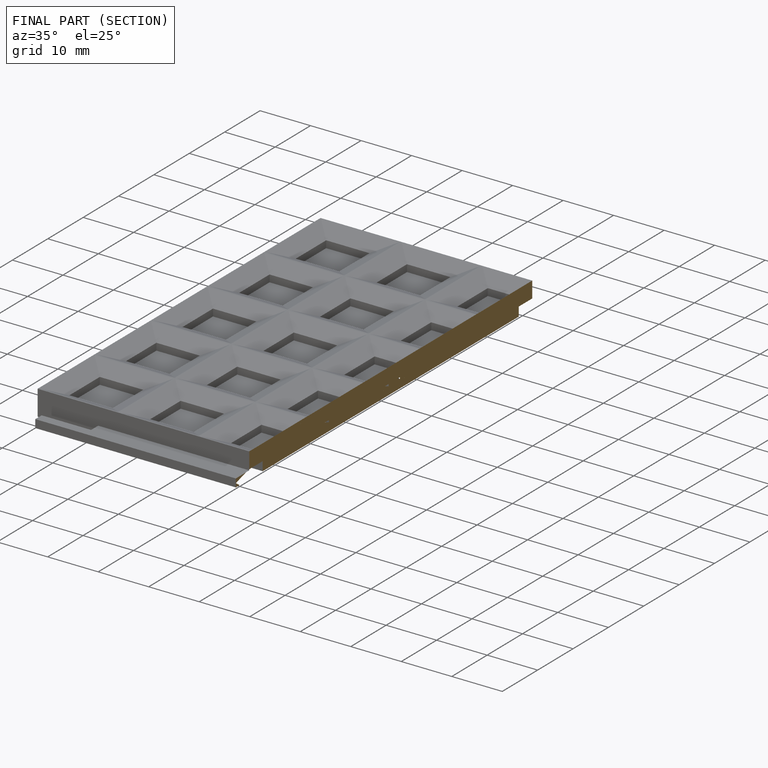
[diagram: finished part — half-section view (interior)]
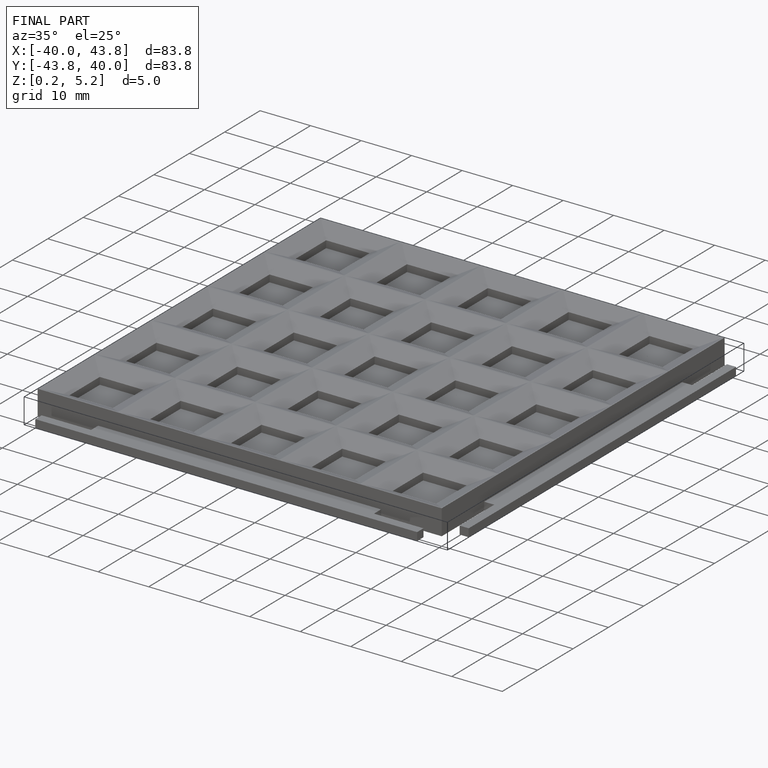
[diagram: finished part — iso view with bounding-box wireframe]
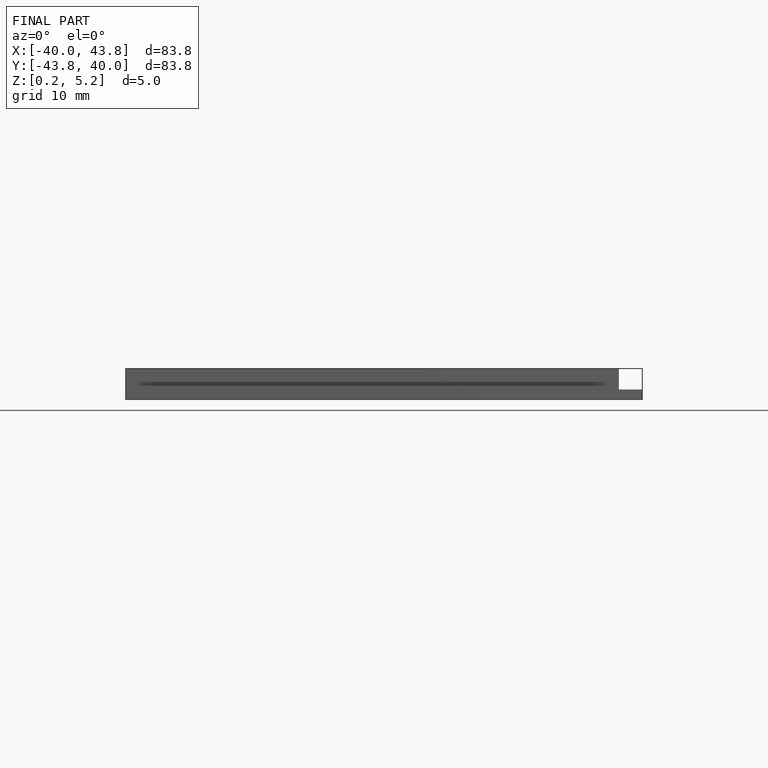
[diagram: finished part — front view with bounding-box wireframe]
